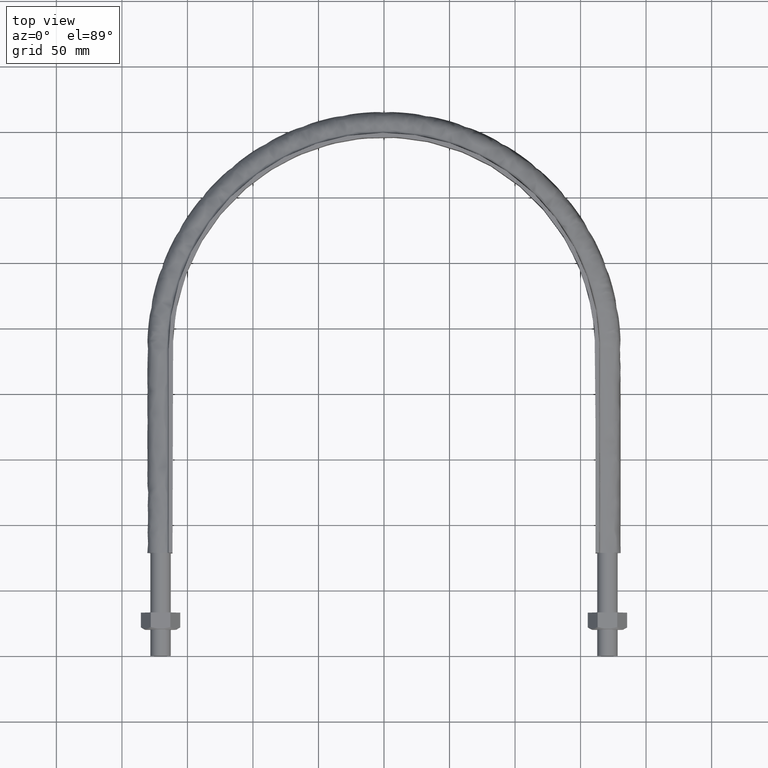
[diagram: clean part render]
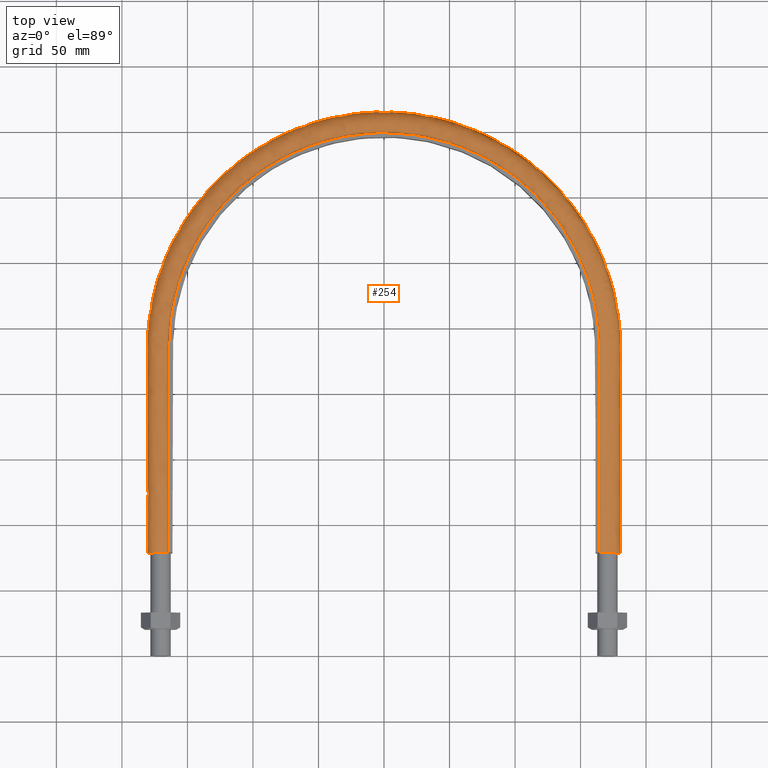
[diagram: same view with one face highlighted and labeled with its STEP entity id]
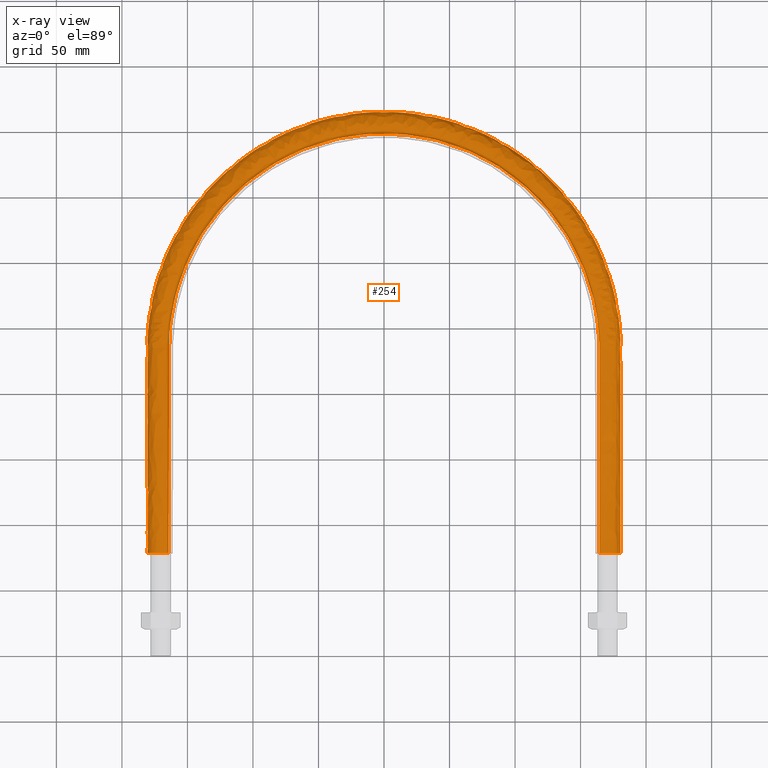
[diagram: x-ray of the same camera — body ghosted, the highlighted face saturated]
A machine part, top view. The second image highlights one B-rep face of the part: STEP entity #254.
The next image is the same camera in x-ray: the body ghosted, the highlighted face saturated — about 0% of this face is hidden behind the body in this view.
In plain terms, the highlighted face is a freeform B-spline surface patch.
Its self-contained STEP definition (entity closure, byte-faithful):
#254 = ADVANCED_FACE( '', ( #349 ), #350, .F. );
#349 = FACE_OUTER_BOUND( '', #648, .T. );
#350 = B_SPLINE_SURFACE_WITH_KNOTS( '', 3, 3, ( ( #649, #650, #651, #652, #653, #654, #655, #656, #657, #658, #659, #660, #661, #662, #663, #664, #665, #666 ), ( #667, #668, #669, #670, #671, #672, #673, #674, #675, #676, #677, #678, #679, #680, #681, #682, #683, #684 ), ( #685, #686, #687, #688, #689, #690, #691, #692, #693, #694, #695, #696, #697, #698, #699, #700, #701, #702 ), ( #703, #704, #705, #706, #707, #708, #709, #710, #711, #712, #713, #714, #715, #716, #717, #718, #719, #720 ), ( #721, #722, #723, #724, #725, #726, #727, #728, #729, #730, #731, #732, #733, #734, #735, #736, #737, #738 ), ( #739, #740, #741, #742, #743, #744, #745, #746, #747, #748, #749, #750, #751, #752, #753, #754, #755, #756 ), ( #757, #758, #759, #760, #761, #762, #763, #764, #765, #766, #767, #768, #769, #770, #771, #772, #773, #774 ), ( #775, #776, #777, #778, #779, #780, #781, #782, #783, #784, #785, #786, #787, #788, #789, #790, #791, #792 ), ( #793, #794, #795, #796, #797, #798, #799, #800, #801, #802, #803, #804, #805, #806, #807, #808, #809, #810 ), ( #811, #812, #813, #814, #815, #816, #817, #818, #819, #820, #821, #822, #823, #824, #825, #826, #827, #828 ), ( #829, #830, #831, #832, #833, #834, #835, #836, #837, #838, #839, #840, #841, #842, #843, #844, #845, #846 ), ( #847, #848, #849, #850, #851, #852, #853, #854, #855, #856, #857, #858, #859, #860, #861, #862, #863, #864 ), ( #865, #866, #867, #868, #869, #870, #871, #872, #873, #874, #875, #876, #877, #878, #879, #880, #881, #882 ), ( #883, #884, #885, #886, #887, #888, #889, #890, #891, #892, #893, #894, #895, #896, #897, #898, #899, #900 ), ( #901, #902, #903, #904, #905, #906, #907, #908, #909, #910, #911, #912, #913, #914, #915, #916, #917, #918 ), ( #919, #920, #921, #922, #923, #924, #925, #926, #927, #928, #929, #930, #931, #932, #933, #934, #935, #936 ), ( #937, #938, #939, #940, #941, #942, #943, #944, #945, #946, #947, #948, #949, #950, #951, #952, #953, #954 ), ( #955, #956, #957, #958, #959, #960, #961, #962, #963, #964, #965, #966, #967, #968, #969, #970, #971, #972 ), ( #973, #974, #975, #976, #977, #978, #979, #980, #981, #982, #983, #984, #985, #986, #987, #988, #989, #990 ), ( #991, #992, #993, #994, #995, #996, #997, #998, #999, #1000, #1001, #1002, #1003, #1004, #1005, #1006, #1007, #1008 ), ( #1009, #1010, #1011, #1012, #1013, #1014, #1015, #1016, #1017, #1018, #1019, #1020, #1021, #1022, #1023, #1024, #1025, #1026 ), ( #1027, #1028, #1029, #1030, #1031, #1032, #1033, #1034, #1035, #1036, #1037, #1038, #1039, #1040, #1041, #1042, #1043, #1044 ), ( #1045, #1046, #1047, #1048, #1049, #1050, #1051, #1052, #1053, #1054, #1055, #1056, #1057, #1058, #1059, #1060, #1061, #1062 ), ( #1063, #1064, #1065, #1066, #1067, #1068, #1069, #1070, #1071, #1072, #1073, #1074, #1075, #1076, #1077, #1078, #1079, #1080 ), ( #1081, #1082, #1083, #1084, #1085, #1086, #1087, #1088, #1089, #1090, #1091, #1092, #1093, #1094, #1095, #1096, #1097, #1098 ), ( #1099, #1100, #1101, #1102, #1103, #1104, #1105, #1106, #1107, #1108, #1109, #1110, #1111, #1112, #1113, #1114, #1115, #1116 ), ( #1117, #1118, #1119, #1120, #1121, #1122, #1123, #1124, #1125, #1126, #1127, #1128, #1129, #1130, #1131, #1132, #1133, #1134 ), ( #1135, #1136, #1137, #1138, #1139, #1140, #1141, #1142, #1143, #1144, #1145, #1146, #1147, #1148, #1149, #1150, #1151, #1152 ), ( #1153, #1154, #1155, #1156, #1157, #1158, #1159, #1160, #1161, #1162, #1163, #1164, #1165, #1166, #1167, #1168, #1169, #1170 ), ( #1171, #1172, #1173, #1174, #1175, #1176, #1177, #1178, #1179, #1180, #1181, #1182, #1183, #1184, #1185, #1186, #1187, #1188 ), ( #1189, #1190, #1191, #1192, #1193, #1194, #1195, #1196, #1197, #1198, #1199, #1200, #1201, #1202, #1203, #1204, #1205, #1206 ), ( #1207, #1208, #1209, #1210, #1211, #1212, #1213, #1214, #1215, #1216, #1217, #1218, #1219, #1220, #1221, #1222, #1223, #1224 ) ), .UNSPECIFIED., .F., .F., .F., ( 4, 3, 1, 1, 1, 3, 3, 1, 1, 1, 1, 3, 3, 1, 1, 1, 3, 4 ), ( 4, 3, 1, 1, 1, 1, 1, 1, 1, 1, 3, 4 ), ( 0.100000000000000, 0.150000000000000, 0.200000000000000, 0.250000000000000, 0.300000000000000, 0.350000000000000, 0.400000000000000, 0.450000000000000, 0.500000000000000, 0.550000000000000, 0.600000000000000, 0.650000000000000, 0.700000000000000, 0.750000000000000, 0.800000000000000, 0.850000000000000, 0.900000000000000, 0.950000000000000 ), ( 0.000000000000000, 1.00000000000000, 2.00000000000000, 3.00000000000000, 4.00000000000000, 5.00000000000000, 6.00000000000000, 7.00000000000000, 8.00000000000000, 9.00000000000000, 10.0000000000000, 11.0000000000000 ), .UNSPECIFIED. );
#648 = EDGE_LOOP( '', ( #1876, #1877, #1878, #1879 ) );
#649 = CARTESIAN_POINT( '', ( 164.400000000000, 78.5100000000000, -20.0000000000000 ) );
#650 = CARTESIAN_POINT( '', ( 164.400000000000, 130.543333333333, -20.0000000000000 ) );
#651 = CARTESIAN_POINT( '', ( 164.400000000000, 182.576666666667, -20.0000000000000 ) );
#652 = CARTESIAN_POINT( '', ( 164.400000000000, 234.610000000000, -20.0000000000000 ) );
#653 = CARTESIAN_POINT( '', ( 164.400000000000, 253.729852554832, -20.0000000000000 ) );
#654 = CARTESIAN_POINT( '', ( 157.654714406062, 291.995036543922, -20.0000000000000 ) );
#655 = CARTESIAN_POINT( '', ( 128.521300722004, 342.451262640467, -20.0000000000000 ) );
#656 = CARTESIAN_POINT( '', ( 83.8863213984847, 379.905611089014, -20.0000000000000 ) );
#657 = CARTESIAN_POINT( '', ( 29.1334136840586, 399.833751296446, -20.0000000000000 ) );
#658 = CARTESIAN_POINT( '', ( -29.1334136840584, 399.833751296446, -20.0000000000000 ) );
#659 = CARTESIAN_POINT( '', ( -83.8863213984845, 379.905611089015, -20.0000000000000 ) );
#660 = CARTESIAN_POINT( '', ( -128.521300722003, 342.451262640467, -20.0000000000001 ) );
#661 = CARTESIAN_POINT( '', ( -157.654714406062, 291.995036543922, -20.0000000000000 ) );
#662 = CARTESIAN_POINT( '', ( -164.400000000000, 253.729852554832, -20.0000000000000 ) );
#663 = CARTESIAN_POINT( '', ( -164.400000000000, 234.610000000000, -20.0000000000000 ) );
#664 = CARTESIAN_POINT( '', ( -164.400000000000, 182.576666666667, -20.0000000000000 ) );
#665 = CARTESIAN_POINT( '', ( -164.400000000000, 130.543333333333, -20.0000000000000 ) );
#666 = CARTESIAN_POINT( '', ( -164.400000000000, 78.5100000000001, -20.0000000000000 ) );
#667 = CARTESIAN_POINT( '', ( 164.400000000000, 78.5100000000000, -17.3666666666667 ) );
#668 = CARTESIAN_POINT( '', ( 164.400000000000, 130.543333333333, -17.3666666666667 ) );
#669 = CARTESIAN_POINT( '', ( 164.400000000000, 182.576666666667, -17.3666666666667 ) );
#670 = CARTESIAN_POINT( '', ( 164.400000000000, 234.610000000000, -17.3666666666667 ) );
#671 = CARTESIAN_POINT( '', ( 164.400000000000, 253.729852554832, -17.3666666666667 ) );
#672 = CARTESIAN_POINT( '', ( 157.654714406062, 291.995036543922, -17.3666666666667 ) );
#673 = CARTESIAN_POINT( '', ( 128.521300722004, 342.451262640467, -17.3666666666667 ) );
#674 = CARTESIAN_POINT( '', ( 83.8863213984847, 379.905611089014, -17.3666666666667 ) );
#675 = CARTESIAN_POINT( '', ( 29.1334136840586, 399.833751296446, -17.3666666666667 ) );
#676 = CARTESIAN_POINT( '', ( -29.1334136840584, 399.833751296446, -17.3666666666667 ) );
#677 = CARTESIAN_POINT( '', ( -83.8863213984845, 379.905611089015, -17.3666666666667 ) );
#678 = CARTESIAN_POINT( '', ( -128.521300722003, 342.451262640467, -17.3666666666667 ) );
#679 = CARTESIAN_POINT( '', ( -157.654714406062, 291.995036543922, -17.3666666666667 ) );
#680 = CARTESIAN_POINT( '', ( -164.400000000000, 253.729852554832, -17.3666666666667 ) );
#681 = CARTESIAN_POINT( '', ( -164.400000000000, 234.610000000000, -17.3666666666667 ) );
#682 = CARTESIAN_POINT( '', ( -164.400000000000, 182.576666666667, -17.3666666666667 ) );
#683 = CARTESIAN_POINT( '', ( -164.400000000000, 130.543333333333, -17.3666666666667 ) );
#684 = CARTESIAN_POINT( '', ( -164.400000000000, 78.5100000000001, -17.3666666666667 ) );
#685 = CARTESIAN_POINT( '', ( 164.400000000000, 78.5100000000000, -14.7333333333333 ) );
#686 = CARTESIAN_POINT( '', ( 164.400000000000, 130.543333333333, -14.7333333333333 ) );
#687 = CARTESIAN_POINT( '', ( 164.400000000000, 182.576666666667, -14.7333333333333 ) );
#688 = CARTESIAN_POINT( '', ( 164.400000000000, 234.610000000000, -14.7333333333333 ) );
#689 = CARTESIAN_POINT( '', ( 164.400000000000, 253.729852554832, -14.7333333333333 ) );
#690 = CARTESIAN_POINT( '', ( 157.654714406062, 291.995036543922, -14.7333333333333 ) );
#691 = CARTESIAN_POINT( '', ( 128.521300722004, 342.451262640467, -14.7333333333333 ) );
#692 = CARTESIAN_POINT( '', ( 83.8863213984847, 379.905611089014, -14.7333333333333 ) );
#693 = CARTESIAN_POINT( '', ( 29.1334136840586, 399.833751296446, -14.7333333333333 ) );
#694 = CARTESIAN_POINT( '', ( -29.1334136840584, 399.833751296446, -14.7333333333333 ) );
#695 = CARTESIAN_POINT( '', ( -83.8863213984845, 379.905611089015, -14.7333333333333 ) );
#696 = CARTESIAN_POINT( '', ( -128.521300722003, 342.451262640467, -14.7333333333334 ) );
#697 = CARTESIAN_POINT( '', ( -157.654714406062, 291.995036543922, -14.7333333333333 ) );
#698 = CARTESIAN_POINT( '', ( -164.400000000000, 253.729852554832, -14.7333333333333 ) );
#699 = CARTESIAN_POINT( '', ( -164.400000000000, 234.610000000000, -14.7333333333333 ) );
#700 = CARTESIAN_POINT( '', ( -164.400000000000, 182.576666666667, -14.7333333333333 ) );
#701 = CARTESIAN_POINT( '', ( -164.400000000000, 130.543333333333, -14.7333333333333 ) );
#702 = CARTESIAN_POINT( '', ( -164.400000000000, 78.5100000000001, -14.7333333333333 ) );
#703 = CARTESIAN_POINT( '', ( 164.400000000000, 78.5100000000000, -12.1000000000000 ) );
#704 = CARTESIAN_POINT( '', ( 164.400000000000, 130.543333333333, -12.1000000000000 ) );
#705 = CARTESIAN_POINT( '', ( 164.400000000000, 182.576666666667, -12.1000000000000 ) );
#706 = CARTESIAN_POINT( '', ( 164.400000000000, 234.610000000000, -12.1000000000000 ) );
#707 = CARTESIAN_POINT( '', ( 164.400000000000, 253.729852554832, -12.1000000000000 ) );
#708 = CARTESIAN_POINT( '', ( 157.654714406062, 291.995036543922, -12.1000000000000 ) );
#709 = CARTESIAN_POINT( '', ( 128.521300722003, 342.451262640467, -12.1000000000000 ) );
#710 = CARTESIAN_POINT( '', ( 83.8863213984847, 379.905611089014, -12.1000000000000 ) );
#711 = CARTESIAN_POINT( '', ( 29.1334136840586, 399.833751296446, -12.1000000000000 ) );
#712 = CARTESIAN_POINT( '', ( -29.1334136840584, 399.833751296446, -12.1000000000000 ) );
#713 = CARTESIAN_POINT( '', ( -83.8863213984845, 379.905611089015, -12.1000000000000 ) );
#714 = CARTESIAN_POINT( '', ( -128.521300722003, 342.451262640467, -12.1000000000000 ) );
#715 = CARTESIAN_POINT( '', ( -157.654714406062, 291.995036543922, -12.1000000000000 ) );
#716 = CARTESIAN_POINT( '', ( -164.400000000000, 253.729852554832, -12.1000000000000 ) );
#717 = CARTESIAN_POINT( '', ( -164.400000000000, 234.610000000000, -12.1000000000000 ) );
#718 = CARTESIAN_POINT( '', ( -164.400000000000, 182.576666666667, -12.1000000000000 ) );
#719 = CARTESIAN_POINT( '', ( -164.400000000000, 130.543333333333, -12.1000000000000 ) );
#720 = CARTESIAN_POINT( '', ( -164.400000000000, 78.5100000000001, -12.1000000000000 ) );
#721 = CARTESIAN_POINT( '', ( 164.400000000000, 78.5100000000000, -11.8382358417233 ) );
#722 = CARTESIAN_POINT( '', ( 164.400000000000, 130.543333333333, -11.8382358417233 ) );
#723 = CARTESIAN_POINT( '', ( 164.400000000000, 182.576666666667, -11.8382358417233 ) );
#724 = CARTESIAN_POINT( '', ( 164.400000000000, 234.610000000000, -11.8382358417233 ) );
#725 = CARTESIAN_POINT( '', ( 164.400000000000, 253.729852554832, -11.8382358417233 ) );
#726 = CARTESIAN_POINT( '', ( 157.654714406062, 291.995036543922, -11.8382358417233 ) );
#727 = CARTESIAN_POINT( '', ( 128.521300722003, 342.451262640467, -11.8382358417233 ) );
#728 = CARTESIAN_POINT( '', ( 83.8863213984847, 379.905611089014, -11.8382358417233 ) );
#729 = CARTESIAN_POINT( '', ( 29.1334136840586, 399.833751296446, -11.8382358417233 ) );
#730 = CARTESIAN_POINT( '', ( -29.1334136840584, 399.833751296446, -11.8382358417233 ) );
#731 = CARTESIAN_POINT( '', ( -83.8863213984845, 379.905611089015, -11.8382358417233 ) );
#732 = CARTESIAN_POINT( '', ( -128.521300722003, 342.451262640467, -11.8382358417233 ) );
#733 = CARTESIAN_POINT( '', ( -157.654714406062, 291.995036543922, -11.8382358417233 ) );
#734 = CARTESIAN_POINT( '', ( -164.400000000000, 253.729852554832, -11.8382358417233 ) );
#735 = CARTESIAN_POINT( '', ( -164.400000000000, 234.610000000000, -11.8382358417233 ) );
#736 = CARTESIAN_POINT( '', ( -164.400000000000, 182.576666666667, -11.8382358417233 ) );
#737 = CARTESIAN_POINT( '', ( -164.400000000000, 130.543333333333, -11.8382358417233 ) );
#738 = CARTESIAN_POINT( '', ( -164.400000000000, 78.5100000000001, -11.8382358417233 ) );
#739 = CARTESIAN_POINT( '', ( 164.504136256836, 78.5100000000000, -11.3147075251700 ) );
#740 = CARTESIAN_POINT( '', ( 164.504136256836, 130.543333333333, -11.3147075251700 ) );
#741 = CARTESIAN_POINT( '', ( 164.504136256836, 182.576666666667, -11.3147075251700 ) );
#742 = CARTESIAN_POINT( '', ( 164.504136256836, 234.610000000000, -11.3147075251700 ) );
#743 = CARTESIAN_POINT( '', ( 164.504136256836, 253.742093909332, -11.3147075251700 ) );
#744 = CARTESIAN_POINT( '', ( 157.754577981675, 292.031325644286, -11.3147075251700 ) );
#745 = CARTESIAN_POINT( '', ( 128.602710254734, 342.519588942373, -11.3147075251700 ) );
#746 = CARTESIAN_POINT( '', ( 83.9394576972084, 379.997641754704, -11.3147075251700 ) );
#747 = CARTESIAN_POINT( '', ( 29.1518677269413, 399.938410195030, -11.3147075251700 ) );
#748 = CARTESIAN_POINT( '', ( -29.1518677269410, 399.938410195030, -11.3147075251700 ) );
#749 = CARTESIAN_POINT( '', ( -83.9394576972082, 379.997641754704, -11.3147075251700 ) );
#750 = CARTESIAN_POINT( '', ( -128.602710254734, 342.519588942373, -11.3147075251700 ) );
#751 = CARTESIAN_POINT( '', ( -157.754577981675, 292.031325644285, -11.3147075251700 ) );
#752 = CARTESIAN_POINT( '', ( -164.504136256836, 253.742093909332, -11.3147075251700 ) );
#753 = CARTESIAN_POINT( '', ( -164.504136256836, 234.610000000000, -11.3147075251700 ) );
#754 = CARTESIAN_POINT( '', ( -164.504136256836, 182.576666666667, -11.3147075251700 ) );
#755 = CARTESIAN_POINT( '', ( -164.504136256836, 130.543333333333, -11.3147075251700 ) );
#756 = CARTESIAN_POINT( '', ( -164.504136256836, 78.5100000000001, -11.3147075251700 ) );
#757 = CARTESIAN_POINT( '', ( 164.948968710939, 78.5100000000000, -10.6489687109389 ) );
#758 = CARTESIAN_POINT( '', ( 164.948968710939, 130.543333333333, -10.6489687109389 ) );
#759 = CARTESIAN_POINT( '', ( 164.948968710939, 182.576666666667, -10.6489687109389 ) );
#760 = CARTESIAN_POINT( '', ( 164.948968710939, 234.610000000000, -10.6489687109389 ) );
#761 = CARTESIAN_POINT( '', ( 164.948968710939, 253.794384551701, -10.6489687109389 ) );
#762 = CARTESIAN_POINT( '', ( 158.181159085751, 292.186339566070, -10.6489687109389 ) );
#763 = CARTESIAN_POINT( '', ( 128.950462356952, 342.811454210824, -10.6489687109389 ) );
#764 = CARTESIAN_POINT( '', ( 84.1664367617665, 380.390763498421, -10.6489687109389 ) );
#765 = CARTESIAN_POINT( '', ( 29.2306967287994, 400.385475185797, -10.6489687109389 ) );
#766 = CARTESIAN_POINT( '', ( -29.2306967287992, 400.385475185797, -10.6489687109389 ) );
#767 = CARTESIAN_POINT( '', ( -84.1664367617663, 380.390763498421, -10.6489687109389 ) );
#768 = CARTESIAN_POINT( '', ( -128.950462356952, 342.811454210824, -10.6489687109389 ) );
#769 = CARTESIAN_POINT( '', ( -158.181159085751, 292.186339566070, -10.6489687109389 ) );
#770 = CARTESIAN_POINT( '', ( -164.948968710939, 253.794384551701, -10.6489687109389 ) );
#771 = CARTESIAN_POINT( '', ( -164.948968710939, 234.610000000000, -10.6489687109389 ) );
#772 = CARTESIAN_POINT( '', ( -164.948968710939, 182.576666666667, -10.6489687109389 ) );
#773 = CARTESIAN_POINT( '', ( -164.948968710939, 130.543333333333, -10.6489687109389 ) );
#774 = CARTESIAN_POINT( '', ( -164.948968710939, 78.5100000000001, -10.6489687109389 ) );
#775 = CARTESIAN_POINT( '', ( 165.614707525170, 78.5100000000000, -10.2041362568359 ) );
#776 = CARTESIAN_POINT( '', ( 165.614707525170, 130.543333333333, -10.2041362568359 ) );
#777 = CARTESIAN_POINT( '', ( 165.614707525170, 182.576666666667, -10.2041362568359 ) );
#778 = CARTESIAN_POINT( '', ( 165.614707525170, 234.610000000000, -10.2041362568359 ) );
#779 = CARTESIAN_POINT( '', ( 165.614707525170, 253.872643028403, -10.2041362568359 ) );
#780 = CARTESIAN_POINT( '', ( 158.819582824356, 292.418334294706, -10.2041362568359 ) );
#781 = CARTESIAN_POINT( '', ( 129.470910157111, 343.248261453508, -10.2041362568359 ) );
#782 = CARTESIAN_POINT( '', ( 84.5061349377886, 380.979111765497, -10.2041362568359 ) );
#783 = CARTESIAN_POINT( '', ( 29.3486726672454, 401.054555227265, -10.2041362568359 ) );
#784 = CARTESIAN_POINT( '', ( -29.3486726672452, 401.054555227265, -10.2041362568359 ) );
#785 = CARTESIAN_POINT( '', ( -84.5061349377885, 380.979111765497, -10.2041362568359 ) );
#786 = CARTESIAN_POINT( '', ( -129.470910157111, 343.248261453508, -10.2041362568359 ) );
#787 = CARTESIAN_POINT( '', ( -158.819582824356, 292.418334294706, -10.2041362568359 ) );
#788 = CARTESIAN_POINT( '', ( -165.614707525170, 253.872643028404, -10.2041362568359 ) );
#789 = CARTESIAN_POINT( '', ( -165.614707525170, 234.610000000000, -10.2041362568359 ) );
#790 = CARTESIAN_POINT( '', ( -165.614707525170, 182.576666666667, -10.2041362568359 ) );
#791 = CARTESIAN_POINT( '', ( -165.614707525170, 130.543333333333, -10.2041362568359 ) );
#792 = CARTESIAN_POINT( '', ( -165.614707525170, 78.5100000000001, -10.2041362568359 ) );
#793 = CARTESIAN_POINT( '', ( 166.138235841723, 78.5100000000000, -10.1000000000000 ) );
#794 = CARTESIAN_POINT( '', ( 166.138235841723, 130.543333333333, -10.1000000000000 ) );
#795 = CARTESIAN_POINT( '', ( 166.138235841723, 182.576666666667, -10.1000000000000 ) );
#796 = CARTESIAN_POINT( '', ( 166.138235841723, 234.610000000000, -10.1000000000000 ) );
#797 = CARTESIAN_POINT( '', ( 166.138235841723, 253.934184473319, -10.1000000000000 ) );
#798 = CARTESIAN_POINT( '', ( 159.321630921861, 292.600771922100, -10.1000000000000 ) );
#799 = CARTESIAN_POINT( '', ( 129.880183516042, 343.591760969434, -10.1000000000000 ) );
#800 = CARTESIAN_POINT( '', ( 84.7732691508276, 381.441781165606, -10.1000000000000 ) );
#801 = CARTESIAN_POINT( '', ( 29.4414474058188, 401.580711041319, -10.1000000000000 ) );
#802 = CARTESIAN_POINT( '', ( -29.4414474058186, 401.580711041319, -10.1000000000000 ) );
#803 = CARTESIAN_POINT( '', ( -84.7732691508274, 381.441781165606, -10.1000000000000 ) );
#804 = CARTESIAN_POINT( '', ( -129.880183516042, 343.591760969434, -10.1000000000000 ) );
#805 = CARTESIAN_POINT( '', ( -159.321630921860, 292.600771922100, -10.1000000000000 ) );
#806 = CARTESIAN_POINT( '', ( -166.138235841723, 253.934184473319, -10.1000000000000 ) );
#807 = CARTESIAN_POINT( '', ( -166.138235841723, 234.610000000000, -10.1000000000000 ) );
#808 = CARTESIAN_POINT( '', ( -166.138235841723, 182.576666666667, -10.1000000000000 ) );
#809 = CARTESIAN_POINT( '', ( -166.138235841723, 130.543333333333, -10.1000000000000 ) );
#810 = CARTESIAN_POINT( '', ( -166.138235841723, 78.5100000000001, -10.1000000000000 ) );
#811 = CARTESIAN_POINT( '', ( 166.400000000000, 78.5100000000000, -10.1000000000000 ) );
#812 = CARTESIAN_POINT( '', ( 166.400000000000, 130.543333333333, -10.1000000000000 ) );
#813 = CARTESIAN_POINT( '', ( 166.400000000000, 182.576666666667, -10.1000000000000 ) );
#814 = CARTESIAN_POINT( '', ( 166.400000000000, 234.610000000000, -10.1000000000000 ) );
#815 = CARTESIAN_POINT( '', ( 166.400000000000, 253.964955195777, -10.1000000000000 ) );
#816 = CARTESIAN_POINT( '', ( 159.572654970613, 292.691990735796, -10.1000000000000 ) );
#817 = CARTESIAN_POINT( '', ( 130.084820195507, 343.763510727396, -10.1000000000000 ) );
#818 = CARTESIAN_POINT( '', ( 84.9068362573470, 381.673115865660, -10.1000000000000 ) );
#819 = CARTESIAN_POINT( '', ( 29.4878347751055, 401.843788948346, -10.1000000000000 ) );
#820 = CARTESIAN_POINT( '', ( -29.4878347751053, 401.843788948346, -10.1000000000000 ) );
#821 = CARTESIAN_POINT( '', ( -84.9068362573468, 381.673115865661, -10.1000000000000 ) );
#822 = CARTESIAN_POINT( '', ( -130.084820195507, 343.763510727396, -10.1000000000000 ) );
#823 = CARTESIAN_POINT( '', ( -159.572654970613, 292.691990735796, -10.1000000000000 ) );
#824 = CARTESIAN_POINT( '', ( -166.400000000000, 253.964955195777, -10.1000000000000 ) );
#825 = CARTESIAN_POINT( '', ( -166.400000000000, 234.610000000000, -10.1000000000000 ) );
#826 = CARTESIAN_POINT( '', ( -166.400000000000, 182.576666666667, -10.1000000000000 ) );
#827 = CARTESIAN_POINT( '', ( -166.400000000000, 130.543333333333, -10.1000000000000 ) );
#828 = CARTESIAN_POINT( '', ( -166.400000000000, 78.5100000000001, -10.1000000000000 ) );
#829 = CARTESIAN_POINT( '', ( 167.766666666667, 78.5100000000000, -10.1000000000000 ) );
#830 = CARTESIAN_POINT( '', ( 167.766666666667, 130.543333333333, -10.1000000000000 ) );
#831 = CARTESIAN_POINT( '', ( 167.766666666667, 182.576666666667, -10.1000000000000 ) );
#832 = CARTESIAN_POINT( '', ( 167.766666666667, 234.610000000000, -10.1000000000000 ) );
#833 = CARTESIAN_POINT( '', ( 167.766666666667, 254.125608667089, -10.1000000000000 ) );
#834 = CARTESIAN_POINT( '', ( 160.883247689722, 293.168242766911, -10.1000000000000 ) );
#835 = CARTESIAN_POINT( '', ( 131.153225169068, 344.660213586798, -10.1000000000000 ) );
#836 = CARTESIAN_POINT( '', ( 85.6041880775696, 382.880910796368, -10.1000000000000 ) );
#837 = CARTESIAN_POINT( '', ( 29.7300225206543, 403.217314677144, -10.1000000000000 ) );
#838 = CARTESIAN_POINT( '', ( -29.7300225206541, 403.217314677144, -10.1000000000000 ) );
#839 = CARTESIAN_POINT( '', ( -85.6041880775694, 382.880910796369, -10.1000000000000 ) );
#840 = CARTESIAN_POINT( '', ( -131.153225169068, 344.660213586798, -10.1000000000000 ) );
#841 = CARTESIAN_POINT( '', ( -160.883247689722, 293.168242766911, -10.1000000000000 ) );
#842 = CARTESIAN_POINT( '', ( -167.766666666667, 254.125608667089, -10.1000000000000 ) );
#843 = CARTESIAN_POINT( '', ( -167.766666666667, 234.610000000000, -10.1000000000000 ) );
#844 = CARTESIAN_POINT( '', ( -167.766666666667, 182.576666666667, -10.1000000000000 ) );
#845 = CARTESIAN_POINT( '', ( -167.766666666667, 130.543333333333, -10.1000000000000 ) );
#846 = CARTESIAN_POINT( '', ( -167.766666666667, 78.5100000000001, -10.1000000000000 ) );
#847 = CARTESIAN_POINT( '', ( 169.133333333333, 78.5100000000000, -10.1000000000000 ) );
#848 = CARTESIAN_POINT( '', ( 169.133333333333, 130.543333333333, -10.1000000000000 ) );
#849 = CARTESIAN_POINT( '', ( 169.133333333333, 182.576666666667, -10.1000000000000 ) );
#850 = CARTESIAN_POINT( '', ( 169.133333333333, 234.610000000000, -10.1000000000000 ) );
#851 = CARTESIAN_POINT( '', ( 169.133333333333, 254.286262138401, -10.1000000000000 ) );
#852 = CARTESIAN_POINT( '', ( 162.193840408832, 293.644494798025, -10.1000000000000 ) );
#853 = CARTESIAN_POINT( '', ( 132.221630142629, 345.556916446200, -10.1000000000000 ) );
#854 = CARTESIAN_POINT( '', ( 86.3015398977922, 384.088705727076, -10.1000000000000 ) );
#855 = CARTESIAN_POINT( '', ( 29.9722102662030, 404.590840405943, -10.1000000000000 ) );
#856 = CARTESIAN_POINT( '', ( -29.9722102662028, 404.590840405943, -10.1000000000000 ) );
#857 = CARTESIAN_POINT( '', ( -86.3015398977920, 384.088705727077, -10.1000000000000 ) );
#858 = CARTESIAN_POINT( '', ( -132.221630142629, 345.556916446200, -10.1000000000000 ) );
#859 = CARTESIAN_POINT( '', ( -162.193840408832, 293.644494798025, -10.1000000000000 ) );
#860 = CARTESIAN_POINT( '', ( -169.133333333333, 254.286262138401, -10.1000000000000 ) );
#861 = CARTESIAN_POINT( '', ( -169.133333333333, 234.610000000000, -10.1000000000000 ) );
#862 = CARTESIAN_POINT( '', ( -169.133333333333, 182.576666666667, -10.1000000000000 ) );
#863 = CARTESIAN_POINT( '', ( -169.133333333333, 130.543333333333, -10.1000000000000 ) );
#864 = CARTESIAN_POINT( '', ( -169.133333333333, 78.5100000000001, -10.1000000000000 ) );
#865 = CARTESIAN_POINT( '', ( 170.500000000000, 78.5100000000000, -10.1000000000000 ) );
#866 = CARTESIAN_POINT( '', ( 170.500000000000, 130.543333333333, -10.1000000000000 ) );
#867 = CARTESIAN_POINT( '', ( 170.500000000000, 182.576666666667, -10.1000000000000 ) );
#868 = CARTESIAN_POINT( '', ( 170.500000000000, 234.610000000000, -10.1000000000000 ) );
#869 = CARTESIAN_POINT( '', ( 170.500000000000, 254.446915609713, -10.1000000000000 ) );
#870 = CARTESIAN_POINT( '', ( 163.504433127941, 294.120746829140, -10.1000000000000 ) );
#871 = CARTESIAN_POINT( '', ( 133.290035116190, 346.453619305602, -10.1000000000000 ) );
#872 = CARTESIAN_POINT( '', ( 86.9988917180148, 385.296500657785, -10.1000000000000 ) );
#873 = CARTESIAN_POINT( '', ( 30.2143980117518, 405.964366134741, -10.1000000000000 ) );
#874 = CARTESIAN_POINT( '', ( -30.2143980117516, 405.964366134741, -10.1000000000000 ) );
#875 = CARTESIAN_POINT( '', ( -86.9988917180146, 385.296500657785, -10.1000000000000 ) );
#876 = CARTESIAN_POINT( '', ( -133.290035116190, 346.453619305602, -10.1000000000000 ) );
#877 = CARTESIAN_POINT( '', ( -163.504433127941, 294.120746829139, -10.1000000000000 ) );
#878 = CARTESIAN_POINT( '', ( -170.500000000000, 254.446915609713, -10.1000000000000 ) );
#879 = CARTESIAN_POINT( '', ( -170.500000000000, 234.610000000000, -10.1000000000000 ) );
#880 = CARTESIAN_POINT( '', ( -170.500000000000, 182.576666666667, -10.1000000000000 ) );
#881 = CARTESIAN_POINT( '', ( -170.500000000000, 130.543333333333, -10.1000000000000 ) );
#882 = CARTESIAN_POINT( '', ( -170.500000000000, 78.5100000000001, -10.1000000000000 ) );
#883 = CARTESIAN_POINT( '', ( 172.613419413283, 78.5100000000000, -10.1000000000000 ) );
#884 = CARTESIAN_POINT( '', ( 172.613419413283, 130.543333333333, -10.1000000000000 ) );
#885 = CARTESIAN_POINT( '', ( 172.613419413283, 182.576666666667, -10.1000000000000 ) );
#886 = CARTESIAN_POINT( '', ( 172.613419413283, 234.610000000000, -10.1000000000000 ) );
#887 = CARTESIAN_POINT( '', ( 172.613419413283, 254.695350852456, -10.1000000000000 ) );
#888 = CARTESIAN_POINT( '', ( 165.531139539264, 294.857225088778, -10.1000000000000 ) );
#889 = CARTESIAN_POINT( '', ( 134.942221320364, 347.840284596582, -10.1000000000000 ) );
#890 = CARTESIAN_POINT( '', ( 88.0772796751465, 387.164240111802, -10.1000000000000 ) );
#891 = CARTESIAN_POINT( '', ( 30.5889182188996, 408.088392432219, -10.1000000000000 ) );
#892 = CARTESIAN_POINT( '', ( -30.5889182188993, 408.088392432219, -10.1000000000000 ) );
#893 = CARTESIAN_POINT( '', ( -88.0772796751464, 387.164240111802, -10.1000000000000 ) );
#894 = CARTESIAN_POINT( '', ( -134.942221320364, 347.840284596582, -10.1000000000000 ) );
#895 = CARTESIAN_POINT( '', ( -165.531139539264, 294.857225088778, -10.1000000000000 ) );
#896 = CARTESIAN_POINT( '', ( -172.613419413283, 254.695350852456, -10.1000000000000 ) );
#897 = CARTESIAN_POINT( '', ( -172.613419413283, 234.610000000000, -10.1000000000000 ) );
#898 = CARTESIAN_POINT( '', ( -172.613419413283, 182.576666666667, -10.1000000000000 ) );
#899 = CARTESIAN_POINT( '', ( -172.613419413283, 130.543333333333, -10.1000000000000 ) );
#900 = CARTESIAN_POINT( '', ( -172.613419413283, 78.5100000000001, -10.1000000000000 ) );
#901 = CARTESIAN_POINT( '', ( 176.840258239849, 78.5100000000000, -8.72661681244669 ) );
#902 = CARTESIAN_POINT( '', ( 176.840258239849, 130.543333333333, -8.72661681244669 ) );
#903 = CARTESIAN_POINT( '', ( 176.840258239849, 182.576666666667, -8.72661681244669 ) );
#904 = CARTESIAN_POINT( '', ( 176.840258239849, 234.610000000000, -8.72661681244669 ) );
#905 = CARTESIAN_POINT( '', ( 176.840258239849, 255.192221337943, -8.72661681244669 ) );
#906 = CARTESIAN_POINT( '', ( 169.584552361908, 296.330181608055, -8.72661681244669 ) );
#907 = CARTESIAN_POINT( '', ( 138.246593728713, 350.613615178542, -8.72661681244669 ) );
#908 = CARTESIAN_POINT( '', ( 90.2340555894100, 390.899719019836, -8.72661681244669 ) );
#909 = CARTESIAN_POINT( '', ( 31.3379586331951, 412.336445027174, -8.72661681244669 ) );
#910 = CARTESIAN_POINT( '', ( -31.3379586331949, 412.336445027174, -8.72661681244670 ) );
#911 = CARTESIAN_POINT( '', ( -90.2340555894098, 390.899719019836, -8.72661681244669 ) );
#912 = CARTESIAN_POINT( '', ( -138.246593728713, 350.613615178542, -8.72661681244670 ) );
#913 = CARTESIAN_POINT( '', ( -169.584552361908, 296.330181608055, -8.72661681244669 ) );
#914 = CARTESIAN_POINT( '', ( -176.840258239849, 255.192221337943, -8.72661681244669 ) );
#915 = CARTESIAN_POINT( '', ( -176.840258239849, 234.610000000000, -8.72661681244669 ) );
#916 = CARTESIAN_POINT( '', ( -176.840258239849, 182.576666666667, -8.72661681244669 ) );
#917 = CARTESIAN_POINT( '', ( -176.840258239849, 130.543333333333, -8.72661681244669 ) );
#918 = CARTESIAN_POINT( '', ( -176.840258239849, 78.5100000000001, -8.72661681244669 ) );
#919 = CARTESIAN_POINT( '', ( 180.758753329527, 78.5100000000000, -3.33327101555837 ) );
#920 = CARTESIAN_POINT( '', ( 180.758753329527, 130.543333333333, -3.33327101555837 ) );
#921 = CARTESIAN_POINT( '', ( 180.758753329527, 182.576666666667, -3.33327101555837 ) );
#922 = CARTESIAN_POINT( '', ( 180.758753329527, 234.610000000000, -3.33327101555837 ) );
#923 = CARTESIAN_POINT( '', ( 180.758753329528, 255.652845609999, -3.33327101555837 ) );
#924 = CARTESIAN_POINT( '', ( 173.342272704151, 297.695687397351, -3.33327101555837 ) );
#925 = CARTESIAN_POINT( '', ( 141.309915418483, 353.184634021078, -3.33327101555837 ) );
#926 = CARTESIAN_POINT( '', ( 92.2334968211080, 394.362698413970, -3.33327101555837 ) );
#927 = CARTESIAN_POINT( '', ( 32.0323572856681, 416.274606361694, -3.33327101555837 ) );
#928 = CARTESIAN_POINT( '', ( -32.0323572856679, 416.274606361694, -3.33327101555837 ) );
#929 = CARTESIAN_POINT( '', ( -92.2334968211077, 394.362698413971, -3.33327101555837 ) );
#930 = CARTESIAN_POINT( '', ( -141.309915418483, 353.184634021078, -3.33327101555838 ) );
#931 = CARTESIAN_POINT( '', ( -173.342272704151, 297.695687397351, -3.33327101555837 ) );
#932 = CARTESIAN_POINT( '', ( -180.758753329527, 255.652845609999, -3.33327101555837 ) );
#933 = CARTESIAN_POINT( '', ( -180.758753329527, 234.610000000000, -3.33327101555837 ) );
#934 = CARTESIAN_POINT( '', ( -180.758753329527, 182.576666666667, -3.33327101555837 ) );
#935 = CARTESIAN_POINT( '', ( -180.758753329527, 130.543333333333, -3.33327101555837 ) );
#936 = CARTESIAN_POINT( '', ( -180.758753329527, 78.5100000000001, -3.33327101555837 ) );
#937 = CARTESIAN_POINT( '', ( 180.758753329527, 78.5100000000000, 3.33327101555838 ) );
#938 = CARTESIAN_POINT( '', ( 180.758753329527, 130.543333333333, 3.33327101555838 ) );
#939 = CARTESIAN_POINT( '', ( 180.758753329527, 182.576666666667, 3.33327101555838 ) );
#940 = CARTESIAN_POINT( '', ( 180.758753329527, 234.610000000000, 3.33327101555838 ) );
#941 = CARTESIAN_POINT( '', ( 180.758753329528, 255.652845609999, 3.33327101555838 ) );
#942 = CARTESIAN_POINT( '', ( 173.342272704151, 297.695687397351, 3.33327101555837 ) );
#943 = CARTESIAN_POINT( '', ( 141.309915418483, 353.184634021078, 3.33327101555838 ) );
#944 = CARTESIAN_POINT( '', ( 92.2334968211080, 394.362698413970, 3.33327101555838 ) );
#945 = CARTESIAN_POINT( '', ( 32.0323572856681, 416.274606361694, 3.33327101555837 ) );
#946 = CARTESIAN_POINT( '', ( -32.0323572856679, 416.274606361694, 3.33327101555838 ) );
#947 = CARTESIAN_POINT( '', ( -92.2334968211077, 394.362698413971, 3.33327101555837 ) );
#948 = CARTESIAN_POINT( '', ( -141.309915418483, 353.184634021078, 3.33327101555838 ) );
#949 = CARTESIAN_POINT( '', ( -173.342272704151, 297.695687397351, 3.33327101555837 ) );
#950 = CARTESIAN_POINT( '', ( -180.758753329527, 255.652845609999, 3.33327101555838 ) );
#951 = CARTESIAN_POINT( '', ( -180.758753329527, 234.610000000000, 3.33327101555838 ) );
#952 = CARTESIAN_POINT( '', ( -180.758753329527, 182.576666666667, 3.33327101555838 ) );
#953 = CARTESIAN_POINT( '', ( -180.758753329527, 130.543333333333, 3.33327101555838 ) );
#954 = CARTESIAN_POINT( '', ( -180.758753329527, 78.5100000000001, 3.33327101555838 ) );
#955 = CARTESIAN_POINT( '', ( 176.840258239849, 78.5100000000000, 8.72661681244669 ) );
#956 = CARTESIAN_POINT( '', ( 176.840258239849, 130.543333333333, 8.72661681244669 ) );
#957 = CARTESIAN_POINT( '', ( 176.840258239849, 182.576666666667, 8.72661681244669 ) );
#958 = CARTESIAN_POINT( '', ( 176.840258239849, 234.610000000000, 8.72661681244669 ) );
#959 = CARTESIAN_POINT( '', ( 176.840258239849, 255.192221337943, 8.72661681244669 ) );
#960 = CARTESIAN_POINT( '', ( 169.584552361908, 296.330181608055, 8.72661681244669 ) );
#961 = CARTESIAN_POINT( '', ( 138.246593728713, 350.613615178542, 8.72661681244669 ) );
#962 = CARTESIAN_POINT( '', ( 90.2340555894100, 390.899719019835, 8.72661681244670 ) );
#963 = CARTESIAN_POINT( '', ( 31.3379586331951, 412.336445027174, 8.72661681244669 ) );
#964 = CARTESIAN_POINT( '', ( -31.3379586331949, 412.336445027174, 8.72661681244670 ) );
#965 = CARTESIAN_POINT( '', ( -90.2340555894098, 390.899719019836, 8.72661681244669 ) );
#966 = CARTESIAN_POINT( '', ( -138.246593728713, 350.613615178542, 8.72661681244671 ) );
#967 = CARTESIAN_POINT( '', ( -169.584552361908, 296.330181608055, 8.72661681244669 ) );
#968 = CARTESIAN_POINT( '', ( -176.840258239849, 255.192221337943, 8.72661681244669 ) );
#969 = CARTESIAN_POINT( '', ( -176.840258239849, 234.610000000000, 8.72661681244669 ) );
#970 = CARTESIAN_POINT( '', ( -176.840258239849, 182.576666666667, 8.72661681244669 ) );
#971 = CARTESIAN_POINT( '', ( -176.840258239849, 130.543333333333, 8.72661681244669 ) );
#972 = CARTESIAN_POINT( '', ( -176.840258239849, 78.5100000000001, 8.72661681244669 ) );
#973 = CARTESIAN_POINT( '', ( 172.613419413283, 78.5100000000000, 10.1000000000000 ) );
#974 = CARTESIAN_POINT( '', ( 172.613419413283, 130.543333333333, 10.1000000000000 ) );
#975 = CARTESIAN_POINT( '', ( 172.613419413283, 182.576666666667, 10.1000000000000 ) );
#976 = CARTESIAN_POINT( '', ( 172.613419413283, 234.610000000000, 10.1000000000000 ) );
#977 = CARTESIAN_POINT( '', ( 172.613419413283, 254.695350852456, 10.1000000000000 ) );
#978 = CARTESIAN_POINT( '', ( 165.531139539264, 294.857225088778, 10.1000000000000 ) );
#979 = CARTESIAN_POINT( '', ( 134.942221320364, 347.840284596582, 10.1000000000000 ) );
#980 = CARTESIAN_POINT( '', ( 88.0772796751465, 387.164240111802, 10.1000000000000 ) );
#981 = CARTESIAN_POINT( '', ( 30.5889182188996, 408.088392432219, 10.1000000000000 ) );
#982 = CARTESIAN_POINT( '', ( -30.5889182188993, 408.088392432219, 10.1000000000000 ) );
#983 = CARTESIAN_POINT( '', ( -88.0772796751464, 387.164240111802, 10.1000000000000 ) );
#984 = CARTESIAN_POINT( '', ( -134.942221320364, 347.840284596582, 10.1000000000000 ) );
#985 = CARTESIAN_POINT( '', ( -165.531139539264, 294.857225088778, 10.1000000000000 ) );
#986 = CARTESIAN_POINT( '', ( -172.613419413283, 254.695350852456, 10.1000000000000 ) );
#987 = CARTESIAN_POINT( '', ( -172.613419413283, 234.610000000000, 10.1000000000000 ) );
#988 = CARTESIAN_POINT( '', ( -172.613419413283, 182.576666666667, 10.1000000000000 ) );
#989 = CARTESIAN_POINT( '', ( -172.613419413283, 130.543333333333, 10.1000000000000 ) );
#990 = CARTESIAN_POINT( '', ( -172.613419413283, 78.5100000000001, 10.1000000000000 ) );
#991 = CARTESIAN_POINT( '', ( 170.500000000000, 78.5100000000000, 10.1000000000000 ) );
#992 = CARTESIAN_POINT( '', ( 170.500000000000, 130.543333333333, 10.1000000000000 ) );
#993 = CARTESIAN_POINT( '', ( 170.500000000000, 182.576666666667, 10.1000000000000 ) );
#994 = CARTESIAN_POINT( '', ( 170.500000000000, 234.610000000000, 10.1000000000000 ) );
#995 = CARTESIAN_POINT( '', ( 170.500000000000, 254.446915609713, 10.1000000000000 ) );
#996 = CARTESIAN_POINT( '', ( 163.504433127941, 294.120746829140, 10.1000000000000 ) );
#997 = CARTESIAN_POINT( '', ( 133.290035116190, 346.453619305602, 10.1000000000000 ) );
#998 = CARTESIAN_POINT( '', ( 86.9988917180148, 385.296500657785, 10.1000000000000 ) );
#999 = CARTESIAN_POINT( '', ( 30.2143980117518, 405.964366134741, 10.1000000000000 ) );
#1000 = CARTESIAN_POINT( '', ( -30.2143980117516, 405.964366134741, 10.1000000000000 ) );
#1001 = CARTESIAN_POINT( '', ( -86.9988917180146, 385.296500657785, 10.1000000000000 ) );
#1002 = CARTESIAN_POINT( '', ( -133.290035116190, 346.453619305602, 10.1000000000000 ) );
#1003 = CARTESIAN_POINT( '', ( -163.504433127941, 294.120746829139, 10.1000000000000 ) );
#1004 = CARTESIAN_POINT( '', ( -170.500000000000, 254.446915609713, 10.1000000000000 ) );
#1005 = CARTESIAN_POINT( '', ( -170.500000000000, 234.610000000000, 10.1000000000000 ) );
#1006 = CARTESIAN_POINT( '', ( -170.500000000000, 182.576666666667, 10.1000000000000 ) );
#1007 = CARTESIAN_POINT( '', ( -170.500000000000, 130.543333333333, 10.1000000000000 ) );
#1008 = CARTESIAN_POINT( '', ( -170.500000000000, 78.5100000000001, 10.1000000000000 ) );
#1009 = CARTESIAN_POINT( '', ( 169.133333333333, 78.5100000000000, 10.1000000000000 ) );
#1010 = CARTESIAN_POINT( '', ( 169.133333333333, 130.543333333333, 10.1000000000000 ) );
#1011 = CARTESIAN_POINT( '', ( 169.133333333333, 182.576666666667, 10.1000000000000 ) );
#1012 = CARTESIAN_POINT( '', ( 169.133333333333, 234.610000000000, 10.1000000000000 ) );
#1013 = CARTESIAN_POINT( '', ( 169.133333333333, 254.286262138401, 10.1000000000000 ) );
#1014 = CARTESIAN_POINT( '', ( 162.193840408832, 293.644494798025, 10.1000000000000 ) );
#1015 = CARTESIAN_POINT( '', ( 132.221630142629, 345.556916446200, 10.1000000000000 ) );
#1016 = CARTESIAN_POINT( '', ( 86.3015398977922, 384.088705727076, 10.1000000000000 ) );
#1017 = CARTESIAN_POINT( '', ( 29.9722102662030, 404.590840405943, 10.1000000000000 ) );
#1018 = CARTESIAN_POINT( '', ( -29.9722102662028, 404.590840405943, 10.1000000000000 ) );
#1019 = CARTESIAN_POINT( '', ( -86.3015398977920, 384.088705727077, 10.1000000000000 ) );
#1020 = CARTESIAN_POINT( '', ( -132.221630142629, 345.556916446200, 10.1000000000000 ) );
#1021 = CARTESIAN_POINT( '', ( -162.193840408832, 293.644494798025, 10.1000000000000 ) );
#1022 = CARTESIAN_POINT( '', ( -169.133333333333, 254.286262138401, 10.1000000000000 ) );
#1023 = CARTESIAN_POINT( '', ( -169.133333333333, 234.610000000000, 10.1000000000000 ) );
#1024 = CARTESIAN_POINT( '', ( -169.133333333333, 182.576666666667, 10.1000000000000 ) );
#1025 = CARTESIAN_POINT( '', ( -169.133333333333, 130.543333333333, 10.1000000000000 ) );
#1026 = CARTESIAN_POINT( '', ( -169.133333333333, 78.5100000000001, 10.1000000000000 ) );
#1027 = CARTESIAN_POINT( '', ( 167.766666666667, 78.5100000000000, 10.1000000000000 ) );
#1028 = CARTESIAN_POINT( '', ( 167.766666666667, 130.543333333333, 10.1000000000000 ) );
#1029 = CARTESIAN_POINT( '', ( 167.766666666667, 182.576666666667, 10.1000000000000 ) );
#1030 = CARTESIAN_POINT( '', ( 167.766666666667, 234.610000000000, 10.1000000000000 ) );
#1031 = CARTESIAN_POINT( '', ( 167.766666666667, 254.125608667089, 10.1000000000000 ) );
#1032 = CARTESIAN_POINT( '', ( 160.883247689722, 293.168242766911, 10.1000000000000 ) );
#1033 = CARTESIAN_POINT( '', ( 131.153225169068, 344.660213586798, 10.1000000000000 ) );
#1034 = CARTESIAN_POINT( '', ( 85.6041880775696, 382.880910796368, 10.1000000000000 ) );
#1035 = CARTESIAN_POINT( '', ( 29.7300225206543, 403.217314677144, 10.1000000000000 ) );
#1036 = CARTESIAN_POINT( '', ( -29.7300225206541, 403.217314677144, 10.1000000000000 ) );
#1037 = CARTESIAN_POINT( '', ( -85.6041880775694, 382.880910796369, 10.1000000000000 ) );
#1038 = CARTESIAN_POINT( '', ( -131.153225169068, 344.660213586798, 10.1000000000000 ) );
#1039 = CARTESIAN_POINT( '', ( -160.883247689722, 293.168242766911, 10.1000000000000 ) );
#1040 = CARTESIAN_POINT( '', ( -167.766666666667, 254.125608667089, 10.1000000000000 ) );
#1041 = CARTESIAN_POINT( '', ( -167.766666666667, 234.610000000000, 10.1000000000000 ) );
#1042 = CARTESIAN_POINT( '', ( -167.766666666667, 182.576666666667, 10.1000000000000 ) );
#1043 = CARTESIAN_POINT( '', ( -167.766666666667, 130.543333333333, 10.1000000000000 ) );
#1044 = CARTESIAN_POINT( '', ( -167.766666666667, 78.5100000000001, 10.1000000000000 ) );
#1045 = CARTESIAN_POINT( '', ( 166.400000000000, 78.5100000000000, 10.1000000000000 ) );
#1046 = CARTESIAN_POINT( '', ( 166.400000000000, 130.543333333333, 10.1000000000000 ) );
#1047 = CARTESIAN_POINT( '', ( 166.400000000000, 182.576666666667, 10.1000000000000 ) );
#1048 = CARTESIAN_POINT( '', ( 166.400000000000, 234.610000000000, 10.1000000000000 ) );
#1049 = CARTESIAN_POINT( '', ( 166.400000000000, 253.964955195777, 10.1000000000000 ) );
#1050 = CARTESIAN_POINT( '', ( 159.572654970613, 292.691990735796, 10.1000000000000 ) );
#1051 = CARTESIAN_POINT( '', ( 130.084820195507, 343.763510727396, 10.1000000000000 ) );
#1052 = CARTESIAN_POINT( '', ( 84.9068362573471, 381.673115865660, 10.1000000000000 ) );
#1053 = CARTESIAN_POINT( '', ( 29.4878347751055, 401.843788948346, 10.1000000000000 ) );
#1054 = CARTESIAN_POINT( '', ( -29.4878347751054, 401.843788948346, 10.1000000000000 ) );
#1055 = CARTESIAN_POINT( '', ( -84.9068362573469, 381.673115865661, 10.1000000000000 ) );
#1056 = CARTESIAN_POINT( '', ( -130.084820195507, 343.763510727396, 10.1000000000000 ) );
#1057 = CARTESIAN_POINT( '', ( -159.572654970613, 292.691990735796, 10.1000000000000 ) );
#1058 = CARTESIAN_POINT( '', ( -166.400000000000, 253.964955195777, 10.1000000000000 ) );
#1059 = CARTESIAN_POINT( '', ( -166.400000000000, 234.610000000000, 10.1000000000000 ) );
#1060 = CARTESIAN_POINT( '', ( -166.400000000000, 182.576666666667, 10.1000000000000 ) );
#1061 = CARTESIAN_POINT( '', ( -166.400000000000, 130.543333333333, 10.1000000000000 ) );
#1062 = CARTESIAN_POINT( '', ( -166.400000000000, 78.5100000000001, 10.1000000000000 ) );
#1063 = CARTESIAN_POINT( '', ( 166.138235841723, 78.5100000000000, 10.1000000000000 ) );
#1064 = CARTESIAN_POINT( '', ( 166.138235841723, 130.543333333333, 10.1000000000000 ) );
#1065 = CARTESIAN_POINT( '', ( 166.138235841723, 182.576666666667, 10.1000000000000 ) );
#1066 = CARTESIAN_POINT( '', ( 166.138235841723, 234.610000000000, 10.1000000000000 ) );
#1067 = CARTESIAN_POINT( '', ( 166.138235841723, 253.934184473319, 10.1000000000000 ) );
#1068 = CARTESIAN_POINT( '', ( 159.321630921861, 292.600771922100, 10.1000000000000 ) );
#1069 = CARTESIAN_POINT( '', ( 129.880183516042, 343.591760969434, 10.1000000000000 ) );
#1070 = CARTESIAN_POINT( '', ( 84.7732691508276, 381.441781165606, 10.1000000000000 ) );
#1071 = CARTESIAN_POINT( '', ( 29.4414474058188, 401.580711041319, 10.1000000000000 ) );
#1072 = CARTESIAN_POINT( '', ( -29.4414474058187, 401.580711041319, 10.1000000000000 ) );
#1073 = CARTESIAN_POINT( '', ( -84.7732691508274, 381.441781165606, 10.1000000000000 ) );
#1074 = CARTESIAN_POINT( '', ( -129.880183516042, 343.591760969434, 10.1000000000000 ) );
#1075 = CARTESIAN_POINT( '', ( -159.321630921860, 292.600771922100, 10.1000000000000 ) );
#1076 = CARTESIAN_POINT( '', ( -166.138235841723, 253.934184473319, 10.1000000000000 ) );
#1077 = CARTESIAN_POINT( '', ( -166.138235841723, 234.610000000000, 10.1000000000000 ) );
#1078 = CARTESIAN_POINT( '', ( -166.138235841723, 182.576666666667, 10.1000000000000 ) );
#1079 = CARTESIAN_POINT( '', ( -166.138235841723, 130.543333333333, 10.1000000000000 ) );
#1080 = CARTESIAN_POINT( '', ( -166.138235841723, 78.5100000000001, 10.1000000000000 ) );
#1081 = CARTESIAN_POINT( '', ( 165.614707525170, 78.5100000000000, 10.2041362568359 ) );
#1082 = CARTESIAN_POINT( '', ( 165.614707525170, 130.543333333333, 10.2041362568359 ) );
#1083 = CARTESIAN_POINT( '', ( 165.614707525170, 182.576666666667, 10.2041362568359 ) );
#1084 = CARTESIAN_POINT( '', ( 165.614707525170, 234.610000000000, 10.2041362568359 ) );
#1085 = CARTESIAN_POINT( '', ( 165.614707525170, 253.872643028404, 10.2041362568359 ) );
#1086 = CARTESIAN_POINT( '', ( 158.819582824356, 292.418334294706, 10.2041362568359 ) );
#1087 = CARTESIAN_POINT( '', ( 129.470910157111, 343.248261453508, 10.2041362568359 ) );
#1088 = CARTESIAN_POINT( '', ( 84.5061349377886, 380.979111765497, 10.2041362568359 ) );
#1089 = CARTESIAN_POINT( '', ( 29.3486726672454, 401.054555227265, 10.2041362568359 ) );
#1090 = CARTESIAN_POINT( '', ( -29.3486726672453, 401.054555227265, 10.2041362568359 ) );
#1091 = CARTESIAN_POINT( '', ( -84.5061349377885, 380.979111765497, 10.2041362568359 ) );
#1092 = CARTESIAN_POINT( '', ( -129.470910157111, 343.248261453508, 10.2041362568359 ) );
#1093 = CARTESIAN_POINT( '', ( -158.819582824356, 292.418334294706, 10.2041362568359 ) );
#1094 = CARTESIAN_POINT( '', ( -165.614707525170, 253.872643028404, 10.2041362568359 ) );
#1095 = CARTESIAN_POINT( '', ( -165.614707525170, 234.610000000000, 10.2041362568359 ) );
#1096 = CARTESIAN_POINT( '', ( -165.614707525170, 182.576666666667, 10.2041362568359 ) );
#1097 = CARTESIAN_POINT( '', ( -165.614707525170, 130.543333333333, 10.2041362568359 ) );
#1098 = CARTESIAN_POINT( '', ( -165.614707525170, 78.5100000000001, 10.2041362568359 ) );
#1099 = CARTESIAN_POINT( '', ( 164.948968710939, 78.5100000000000, 10.6489687109389 ) );
#1100 = CARTESIAN_POINT( '', ( 164.948968710939, 130.543333333333, 10.6489687109389 ) );
#1101 = CARTESIAN_POINT( '', ( 164.948968710939, 182.576666666667, 10.6489687109389 ) );
#1102 = CARTESIAN_POINT( '', ( 164.948968710939, 234.610000000000, 10.6489687109389 ) );
#1103 = CARTESIAN_POINT( '', ( 164.948968710939, 253.794384551701, 10.6489687109389 ) );
#1104 = CARTESIAN_POINT( '', ( 158.181159085751, 292.186339566070, 10.6489687109389 ) );
#1105 = CARTESIAN_POINT( '', ( 128.950462356952, 342.811454210824, 10.6489687109389 ) );
#1106 = CARTESIAN_POINT( '', ( 84.1664367617665, 380.390763498421, 10.6489687109389 ) );
#1107 = CARTESIAN_POINT( '', ( 29.2306967287994, 400.385475185797, 10.6489687109389 ) );
#1108 = CARTESIAN_POINT( '', ( -29.2306967287992, 400.385475185797, 10.6489687109389 ) );
#1109 = CARTESIAN_POINT( '', ( -84.1664367617663, 380.390763498421, 10.6489687109389 ) );
#1110 = CARTESIAN_POINT( '', ( -128.950462356952, 342.811454210824, 10.6489687109389 ) );
#1111 = CARTESIAN_POINT( '', ( -158.181159085751, 292.186339566070, 10.6489687109389 ) );
#1112 = CARTESIAN_POINT( '', ( -164.948968710939, 253.794384551701, 10.6489687109389 ) );
#1113 = CARTESIAN_POINT( '', ( -164.948968710939, 234.610000000000, 10.6489687109389 ) );
#1114 = CARTESIAN_POINT( '', ( -164.948968710939, 182.576666666667, 10.6489687109389 ) );
#1115 = CARTESIAN_POINT( '', ( -164.948968710939, 130.543333333333, 10.6489687109389 ) );
#1116 = CARTESIAN_POINT( '', ( -164.948968710939, 78.5100000000001, 10.6489687109389 ) );
#1117 = CARTESIAN_POINT( '', ( 164.504136256836, 78.5100000000000, 11.3147075251700 ) );
#1118 = CARTESIAN_POINT( '', ( 164.504136256836, 130.543333333333, 11.3147075251700 ) );
#1119 = CARTESIAN_POINT( '', ( 164.504136256836, 182.576666666667, 11.3147075251700 ) );
#1120 = CARTESIAN_POINT( '', ( 164.504136256836, 234.610000000000, 11.3147075251700 ) );
#1121 = CARTESIAN_POINT( '', ( 164.504136256836, 253.742093909332, 11.3147075251700 ) );
#1122 = CARTESIAN_POINT( '', ( 157.754577981675, 292.031325644285, 11.3147075251700 ) );
#1123 = CARTESIAN_POINT( '', ( 128.602710254734, 342.519588942373, 11.3147075251700 ) );
#1124 = CARTESIAN_POINT( '', ( 83.9394576972084, 379.997641754704, 11.3147075251700 ) );
#1125 = CARTESIAN_POINT( '', ( 29.1518677269413, 399.938410195030, 11.3147075251700 ) );
#1126 = CARTESIAN_POINT( '', ( -29.1518677269411, 399.938410195030, 11.3147075251700 ) );
#1127 = CARTESIAN_POINT( '', ( -83.9394576972082, 379.997641754704, 11.3147075251700 ) );
#1128 = CARTESIAN_POINT( '', ( -128.602710254734, 342.519588942373, 11.3147075251700 ) );
#1129 = CARTESIAN_POINT( '', ( -157.754577981675, 292.031325644285, 11.3147075251700 ) );
#1130 = CARTESIAN_POINT( '', ( -164.504136256836, 253.742093909332, 11.3147075251700 ) );
#1131 = CARTESIAN_POINT( '', ( -164.504136256836, 234.610000000000, 11.3147075251700 ) );
#1132 = CARTESIAN_POINT( '', ( -164.504136256836, 182.576666666667, 11.3147075251700 ) );
#1133 = CARTESIAN_POINT( '', ( -164.504136256836, 130.543333333333, 11.3147075251700 ) );
#1134 = CARTESIAN_POINT( '', ( -164.504136256836, 78.5100000000001, 11.3147075251700 ) );
#1135 = CARTESIAN_POINT( '', ( 164.400000000000, 78.5100000000000, 11.8382358417233 ) );
#1136 = CARTESIAN_POINT( '', ( 164.400000000000, 130.543333333333, 11.8382358417233 ) );
#1137 = CARTESIAN_POINT( '', ( 164.400000000000, 182.576666666667, 11.8382358417233 ) );
#1138 = CARTESIAN_POINT( '', ( 164.400000000000, 234.610000000000, 11.8382358417233 ) );
#1139 = CARTESIAN_POINT( '', ( 164.400000000000, 253.729852554832, 11.8382358417233 ) );
#1140 = CARTESIAN_POINT( '', ( 157.654714406062, 291.995036543922, 11.8382358417233 ) );
#1141 = CARTESIAN_POINT( '', ( 128.521300722004, 342.451262640467, 11.8382358417233 ) );
#1142 = CARTESIAN_POINT( '', ( 83.8863213984847, 379.905611089014, 11.8382358417233 ) );
#1143 = CARTESIAN_POINT( '', ( 29.1334136840586, 399.833751296446, 11.8382358417233 ) );
#1144 = CARTESIAN_POINT( '', ( -29.1334136840584, 399.833751296446, 11.8382358417233 ) );
#1145 = CARTESIAN_POINT( '', ( -83.8863213984845, 379.905611089015, 11.8382358417233 ) );
#1146 = CARTESIAN_POINT( '', ( -128.521300722003, 342.451262640467, 11.8382358417234 ) );
#1147 = CARTESIAN_POINT( '', ( -157.654714406062, 291.995036543922, 11.8382358417233 ) );
#1148 = CARTESIAN_POINT( '', ( -164.400000000000, 253.729852554832, 11.8382358417233 ) );
#1149 = CARTESIAN_POINT( '', ( -164.400000000000, 234.610000000000, 11.8382358417233 ) );
#1150 = CARTESIAN_POINT( '', ( -164.400000000000, 182.576666666667, 11.8382358417233 ) );
#1151 = CARTESIAN_POINT( '', ( -164.400000000000, 130.543333333333, 11.8382358417233 ) );
#1152 = CARTESIAN_POINT( '', ( -164.400000000000, 78.5100000000001, 11.8382358417233 ) );
#1153 = CARTESIAN_POINT( '', ( 164.400000000000, 78.5100000000000, 12.1000000000000 ) );
#1154 = CARTESIAN_POINT( '', ( 164.400000000000, 130.543333333333, 12.1000000000000 ) );
#1155 = CARTESIAN_POINT( '', ( 164.400000000000, 182.576666666667, 12.1000000000000 ) );
#1156 = CARTESIAN_POINT( '', ( 164.400000000000, 234.610000000000, 12.1000000000000 ) );
#1157 = CARTESIAN_POINT( '', ( 164.400000000000, 253.729852554832, 12.1000000000000 ) );
#1158 = CARTESIAN_POINT( '', ( 157.654714406062, 291.995036543922, 12.1000000000000 ) );
#1159 = CARTESIAN_POINT( '', ( 128.521300722004, 342.451262640467, 12.1000000000000 ) );
#1160 = CARTESIAN_POINT( '', ( 83.8863213984847, 379.905611089014, 12.1000000000000 ) );
#1161 = CARTESIAN_POINT( '', ( 29.1334136840586, 399.833751296446, 12.1000000000000 ) );
#1162 = CARTESIAN_POINT( '', ( -29.1334136840584, 399.833751296446, 12.1000000000000 ) );
#1163 = CARTESIAN_POINT( '', ( -83.8863213984845, 379.905611089015, 12.1000000000000 ) );
#1164 = CARTESIAN_POINT( '', ( -128.521300722003, 342.451262640467, 12.1000000000000 ) );
#1165 = CARTESIAN_POINT( '', ( -157.654714406062, 291.995036543922, 12.1000000000000 ) );
#1166 = CARTESIAN_POINT( '', ( -164.400000000000, 253.729852554832, 12.1000000000000 ) );
#1167 = CARTESIAN_POINT( '', ( -164.400000000000, 234.610000000000, 12.1000000000000 ) );
#1168 = CARTESIAN_POINT( '', ( -164.400000000000, 182.576666666667, 12.1000000000000 ) );
#1169 = CARTESIAN_POINT( '', ( -164.400000000000, 130.543333333333, 12.1000000000000 ) );
#1170 = CARTESIAN_POINT( '', ( -164.400000000000, 78.5100000000001, 12.1000000000000 ) );
#1171 = CARTESIAN_POINT( '', ( 164.400000000000, 78.5100000000000, 14.7333333333333 ) );
#1172 = CARTESIAN_POINT( '', ( 164.400000000000, 130.543333333333, 14.7333333333333 ) );
#1173 = CARTESIAN_POINT( '', ( 164.400000000000, 182.576666666667, 14.7333333333333 ) );
#1174 = CARTESIAN_POINT( '', ( 164.400000000000, 234.610000000000, 14.7333333333333 ) );
#1175 = CARTESIAN_POINT( '', ( 164.400000000000, 253.729852554832, 14.7333333333333 ) );
#1176 = CARTESIAN_POINT( '', ( 157.654714406062, 291.995036543922, 14.7333333333333 ) );
#1177 = CARTESIAN_POINT( '', ( 128.521300722003, 342.451262640467, 14.7333333333333 ) );
#1178 = CARTESIAN_POINT( '', ( 83.8863213984847, 379.905611089014, 14.7333333333333 ) );
#1179 = CARTESIAN_POINT( '', ( 29.1334136840586, 399.833751296446, 14.7333333333333 ) );
#1180 = CARTESIAN_POINT( '', ( -29.1334136840584, 399.833751296446, 14.7333333333333 ) );
#1181 = CARTESIAN_POINT( '', ( -83.8863213984845, 379.905611089015, 14.7333333333333 ) );
#1182 = CARTESIAN_POINT( '', ( -128.521300722003, 342.451262640467, 14.7333333333334 ) );
#1183 = CARTESIAN_POINT( '', ( -157.654714406062, 291.995036543922, 14.7333333333333 ) );
#1184 = CARTESIAN_POINT( '', ( -164.400000000000, 253.729852554832, 14.7333333333333 ) );
#1185 = CARTESIAN_POINT( '', ( -164.400000000000, 234.610000000000, 14.7333333333333 ) );
#1186 = CARTESIAN_POINT( '', ( -164.400000000000, 182.576666666667, 14.7333333333333 ) );
#1187 = CARTESIAN_POINT( '', ( -164.400000000000, 130.543333333333, 14.7333333333333 ) );
#1188 = CARTESIAN_POINT( '', ( -164.400000000000, 78.5100000000001, 14.7333333333333 ) );
#1189 = CARTESIAN_POINT( '', ( 164.400000000000, 78.5100000000000, 17.3666666666667 ) );
#1190 = CARTESIAN_POINT( '', ( 164.400000000000, 130.543333333333, 17.3666666666667 ) );
#1191 = CARTESIAN_POINT( '', ( 164.400000000000, 182.576666666667, 17.3666666666667 ) );
#1192 = CARTESIAN_POINT( '', ( 164.400000000000, 234.610000000000, 17.3666666666667 ) );
#1193 = CARTESIAN_POINT( '', ( 164.400000000000, 253.729852554832, 17.3666666666667 ) );
#1194 = CARTESIAN_POINT( '', ( 157.654714406062, 291.995036543922, 17.3666666666667 ) );
#1195 = CARTESIAN_POINT( '', ( 128.521300722003, 342.451262640467, 17.3666666666667 ) );
#1196 = CARTESIAN_POINT( '', ( 83.8863213984847, 379.905611089014, 17.3666666666667 ) );
#1197 = CARTESIAN_POINT( '', ( 29.1334136840586, 399.833751296446, 17.3666666666666 ) );
#1198 = CARTESIAN_POINT( '', ( -29.1334136840584, 399.833751296446, 17.3666666666667 ) );
#1199 = CARTESIAN_POINT( '', ( -83.8863213984845, 379.905611089015, 17.3666666666666 ) );
#1200 = CARTESIAN_POINT( '', ( -128.521300722003, 342.451262640467, 17.3666666666667 ) );
#1201 = CARTESIAN_POINT( '', ( -157.654714406062, 291.995036543922, 17.3666666666667 ) );
#1202 = CARTESIAN_POINT( '', ( -164.400000000000, 253.729852554832, 17.3666666666667 ) );
#1203 = CARTESIAN_POINT( '', ( -164.400000000000, 234.610000000000, 17.3666666666667 ) );
#1204 = CARTESIAN_POINT( '', ( -164.400000000000, 182.576666666667, 17.3666666666667 ) );
#1205 = CARTESIAN_POINT( '', ( -164.400000000000, 130.543333333333, 17.3666666666667 ) );
#1206 = CARTESIAN_POINT( '', ( -164.400000000000, 78.5100000000001, 17.3666666666667 ) );
#1207 = CARTESIAN_POINT( '', ( 164.400000000000, 78.5100000000000, 20.0000000000000 ) );
#1208 = CARTESIAN_POINT( '', ( 164.400000000000, 130.543333333333, 20.0000000000000 ) );
#1209 = CARTESIAN_POINT( '', ( 164.400000000000, 182.576666666667, 20.0000000000000 ) );
#1210 = CARTESIAN_POINT( '', ( 164.400000000000, 234.610000000000, 20.0000000000000 ) );
#1211 = CARTESIAN_POINT( '', ( 164.400000000000, 253.729852554832, 20.0000000000000 ) );
#1212 = CARTESIAN_POINT( '', ( 157.654714406062, 291.995036543922, 20.0000000000000 ) );
#1213 = CARTESIAN_POINT( '', ( 128.521300722003, 342.451262640467, 20.0000000000000 ) );
#1214 = CARTESIAN_POINT( '', ( 83.8863213984847, 379.905611089014, 20.0000000000000 ) );
#1215 = CARTESIAN_POINT( '', ( 29.1334136840586, 399.833751296446, 20.0000000000000 ) );
#1216 = CARTESIAN_POINT( '', ( -29.1334136840584, 399.833751296446, 20.0000000000000 ) );
#1217 = CARTESIAN_POINT( '', ( -83.8863213984845, 379.905611089015, 20.0000000000000 ) );
#1218 = CARTESIAN_POINT( '', ( -128.521300722003, 342.451262640467, 20.0000000000000 ) );
#1219 = CARTESIAN_POINT( '', ( -157.654714406062, 291.995036543922, 20.0000000000000 ) );
#1220 = CARTESIAN_POINT( '', ( -164.400000000000, 253.729852554832, 20.0000000000000 ) );
#1221 = CARTESIAN_POINT( '', ( -164.400000000000, 234.610000000000, 20.0000000000000 ) );
#1222 = CARTESIAN_POINT( '', ( -164.400000000000, 182.576666666667, 20.0000000000000 ) );
#1223 = CARTESIAN_POINT( '', ( -164.400000000000, 130.543333333333, 20.0000000000000 ) );
#1224 = CARTESIAN_POINT( '', ( -164.400000000000, 78.5100000000001, 20.0000000000000 ) );
#1876 = ORIENTED_EDGE( '', *, *, #1971, .T. );
#1877 = ORIENTED_EDGE( '', *, *, #1984, .F. );
#1878 = ORIENTED_EDGE( '', *, *, #1987, .F. );
#1879 = ORIENTED_EDGE( '', *, *, #1977, .F. );
#1971 = EDGE_CURVE( '', #2083, #2084, #2085, .T. );
#1977 = EDGE_CURVE( '', #2083, #2095, #2096, .F. );
#1984 = EDGE_CURVE( '', #2107, #2084, #2109, .T. );
#1987 = EDGE_CURVE( '', #2095, #2107, #2113, .T. );
#2083 = VERTEX_POINT( '', #2385 );
#2084 = VERTEX_POINT( '', #2386 );
#2085 = B_SPLINE_CURVE_WITH_KNOTS( '', 3, ( #2387, #2388, #2389, #2390, #2391, #2392, #2393, #2394, #2395, #2396, #2397, #2398, #2399, #2400, #2401, #2402, #2403, #2404 ), .UNSPECIFIED., .F., .F., ( 4, 3, 1, 1, 1, 1, 1, 1, 1, 1, 3, 4 ), ( 0.000000000000000, 0.0909090909090909, 0.181818181818182, 0.272727272727273, 0.363636363636364, 0.454545454545455, 0.545454545454545, 0.636363636363636, 0.727272727272727, 0.818181818181818, 0.909090909090909, 1.00000000000000 ), .UNSPECIFIED. );
#2095 = VERTEX_POINT( '', #2548 );
#2096 = B_SPLINE_CURVE_WITH_KNOTS( '', 3, ( #2549, #2550, #2551, #2552, #2553, #2554, #2555, #2556, #2557, #2558, #2559, #2560, #2561, #2562, #2563, #2564, #2565, #2566, #2567, #2568, #2569, #2570, #2571, #2572, #2573, #2574, #2575, #2576, #2577, #2578, #2579, #2580 ), .UNSPECIFIED., .F., .F., ( 4, 3, 1, 1, 1, 3, 3, 1, 1, 1, 1, 3, 3, 1, 1, 1, 3, 4 ), ( 0.131645569620253, 0.150000000000000, 0.200000000000000, 0.250000000000000, 0.300000000000000, 0.350000000000000, 0.400000000000000, 0.450000000000000, 0.500000000000000, 0.550000000000000, 0.600000000000000, 0.650000000000000, 0.700000000000000, 0.750000000000000, 0.800000000000000, 0.850000000000000, 0.900000000000000, 0.918354430379747 ), .UNSPECIFIED. );
#2107 = VERTEX_POINT( '', #2605 );
#2109 = B_SPLINE_CURVE_WITH_KNOTS( '', 3, ( #2608, #2609, #2610, #2611, #2612, #2613, #2614, #2615, #2616, #2617, #2618, #2619, #2620, #2621, #2622, #2623, #2624, #2625, #2626, #2627, #2628, #2629, #2630, #2631, #2632, #2633, #2634, #2635, #2636, #2637, #2638, #2639 ), .UNSPECIFIED., .F., .F., ( 4, 3, 1, 1, 1, 3, 3, 1, 1, 1, 1, 3, 3, 1, 1, 1, 3, 4 ), ( 0.131645569620253, 0.150000000000000, 0.200000000000000, 0.250000000000000, 0.300000000000000, 0.350000000000000, 0.400000000000000, 0.450000000000000, 0.500000000000000, 0.550000000000000, 0.600000000000000, 0.650000000000000, 0.700000000000000, 0.750000000000000, 0.800000000000000, 0.850000000000000, 0.900000000000000, 0.918354430379747 ), .UNSPECIFIED. );
#2113 = B_SPLINE_CURVE_WITH_KNOTS( '', 3, ( #2654, #2655, #2656, #2657, #2658, #2659, #2660, #2661, #2662, #2663, #2664, #2665, #2666, #2667, #2668, #2669, #2670, #2671, #2672, #2673, #2674, #2675, #2676, #2677, #2678, #2679, #2680, #2681, #2682, #2683, #2684, #2685, #2686, #2687, #2688, #2689, #2690, #2691, #2692, #2693, #2694, #2695, #2696, #2697, #2698, #2699, #2700, #2701, #2702, #2703, #2704, #2705, #2706, #2707, #2708, #2709, #2710, #2711, #2712, #2713, #2714, #2715, #2716, #2717, #2718, #2719, #2720, #2721, #2722, #2723, #2724, #2725, #2726, #2727, #2728, #2729, #2730, #2731, #2732, #2733, #2734, #2735, #2736, #2737, #2738, #2739, #2740, #2741, #2742, #2743, #2744, #2745, #2746, #2747, #2748, #2749, #2750, #2751, #2752, #2753, #2754, #2755, #2756, #2757, #2758, #2759, #2760, #2761, #2762, #2763 ), .UNSPECIFIED., .F., .F., ( 4, 1, 2, 2, 2, 2, 2, 2, 2, 2, 2, 2, 2, 2, 2, 2, 2, 2, 2, 2, 2, 2, 2, 2, 2, 2, 2, 2, 2, 2, 2, 2, 2, 2, 2, 2, 2, 2, 2, 2, 2, 2, 2, 2, 2, 2, 2, 2, 2, 2, 2, 2, 2, 2, 1, 4 ), ( 0.000000000000000, 0.124999999999995, 0.187499999999993, 0.191406249999993, 0.195312499999993, 0.203124999999992, 0.218749999999991, 0.222656249999991, 0.226562499999991, 0.234374999999991, 0.249999999999991, 0.281249999999991, 0.289062499999991, 0.292968749999991, 0.296874999999991, 0.312499999999991, 0.343749999999991, 0.351562499999991, 0.359374999999991, 0.374999999999990, 0.406249999999990, 0.421874999999990, 0.429687499999990, 0.437499999999990, 0.468749999999989, 0.484374999999989, 0.492187499999989, 0.499999999999989, 0.515624999999989, 0.531249999999988, 0.546874999999988, 0.554687499999988, 0.562499999999988, 0.578124999999988, 0.593749999999988, 0.624999999999988, 0.628906249999988, 0.632812499999988, 0.640624999999988, 0.656249999999988, 0.687499999999988, 0.691406249999988, 0.695312499999988, 0.703124999999988, 0.718749999999988, 0.749999999999988, 0.757812499999988, 0.761718749999988, 0.765624999999988, 0.781249999999989, 0.796874999999990, 0.804687499999990, 0.808593749999990, 0.812499999999990, 0.874999999999994, 1.00000000000000 ), .UNSPECIFIED. );
#2385 = CARTESIAN_POINT( '', ( -164.400000000000, 78.5100000000001, 15.0000000000000 ) );
#2386 = CARTESIAN_POINT( '', ( 164.400000000000, 78.5100000000000, 15.0000000000000 ) );
#2387 = CARTESIAN_POINT( '', ( -164.400000000000, 78.5100000000001, 15.0000000000000 ) );
#2388 = CARTESIAN_POINT( '', ( -164.400000000000, 130.543333333333, 15.0000000000000 ) );
#2389 = CARTESIAN_POINT( '', ( -164.400000000000, 182.576666666667, 15.0000000000000 ) );
#2390 = CARTESIAN_POINT( '', ( -164.400000000000, 234.610000000000, 15.0000000000000 ) );
#2391 = CARTESIAN_POINT( '', ( -164.400000000000, 253.729852554832, 15.0000000000000 ) );
#2392 = CARTESIAN_POINT( '', ( -157.654714406062, 291.995036543922, 15.0000000000000 ) );
#2393 = CARTESIAN_POINT( '', ( -128.521300722003, 342.451262640467, 15.0000000000000 ) );
#2394 = CARTESIAN_POINT( '', ( -83.8863213984845, 379.905611089015, 15.0000000000000 ) );
#2395 = CARTESIAN_POINT( '', ( -29.1334136840584, 399.833751296446, 15.0000000000000 ) );
#2396 = CARTESIAN_POINT( '', ( 29.1334136840586, 399.833751296446, 15.0000000000000 ) );
#2397 = CARTESIAN_POINT( '', ( 83.8863213984847, 379.905611089014, 15.0000000000000 ) );
#2398 = CARTESIAN_POINT( '', ( 128.521300722003, 342.451262640467, 15.0000000000000 ) );
#2399 = CARTESIAN_POINT( '', ( 157.654714406062, 291.995036543922, 15.0000000000000 ) );
#2400 = CARTESIAN_POINT( '', ( 164.400000000000, 253.729852554832, 15.0000000000000 ) );
#2401 = CARTESIAN_POINT( '', ( 164.400000000000, 234.610000000000, 15.0000000000000 ) );
#2402 = CARTESIAN_POINT( '', ( 164.400000000000, 182.576666666667, 15.0000000000000 ) );
#2403 = CARTESIAN_POINT( '', ( 164.400000000000, 130.543333333333, 15.0000000000000 ) );
#2404 = CARTESIAN_POINT( '', ( 164.400000000000, 78.5100000000000, 15.0000000000000 ) );
#2548 = CARTESIAN_POINT( '', ( -164.400000000000, 78.5100000000001, -15.0000000000000 ) );
#2549 = CARTESIAN_POINT( '', ( -164.400000000000, 78.5100000000001, -15.0000000000000 ) );
#2550 = CARTESIAN_POINT( '', ( -164.400000000000, 78.5100000000001, -14.0333333333333 ) );
#2551 = CARTESIAN_POINT( '', ( -164.400000000000, 78.5100000000001, -13.0666666666667 ) );
#2552 = CARTESIAN_POINT( '', ( -164.400000000000, 78.5100000000001, -12.1000000000000 ) );
#2553 = CARTESIAN_POINT( '', ( -164.400000000000, 78.5100000000001, -11.8382358417233 ) );
#2554 = CARTESIAN_POINT( '', ( -164.504136256836, 78.5100000000001, -11.3147075251700 ) );
#2555 = CARTESIAN_POINT( '', ( -164.948968710939, 78.5100000000001, -10.6489687109389 ) );
#2556 = CARTESIAN_POINT( '', ( -165.614707525170, 78.5100000000001, -10.2041362568359 ) );
#2557 = CARTESIAN_POINT( '', ( -166.138235841723, 78.5100000000001, -10.1000000000000 ) );
#2558 = CARTESIAN_POINT( '', ( -166.400000000000, 78.5100000000001, -10.1000000000000 ) );
#2559 = CARTESIAN_POINT( '', ( -167.766666666667, 78.5100000000001, -10.1000000000000 ) );
#2560 = CARTESIAN_POINT( '', ( -169.133333333333, 78.5100000000001, -10.1000000000000 ) );
#2561 = CARTESIAN_POINT( '', ( -170.500000000000, 78.5100000000001, -10.1000000000000 ) );
#2562 = CARTESIAN_POINT( '', ( -172.613419413283, 78.5100000000001, -10.1000000000000 ) );
#2563 = CARTESIAN_POINT( '', ( -176.840258239849, 78.5100000000001, -8.72661681244669 ) );
#2564 = CARTESIAN_POINT( '', ( -180.758753329527, 78.5100000000001, -3.33327101555837 ) );
#2565 = CARTESIAN_POINT( '', ( -180.758753329527, 78.5100000000001, 3.33327101555838 ) );
#2566 = CARTESIAN_POINT( '', ( -176.840258239849, 78.5100000000001, 8.72661681244669 ) );
#2567 = CARTESIAN_POINT( '', ( -172.613419413283, 78.5100000000001, 10.1000000000000 ) );
#2568 = CARTESIAN_POINT( '', ( -170.500000000000, 78.5100000000001, 10.1000000000000 ) );
#2569 = CARTESIAN_POINT( '', ( -169.133333333333, 78.5100000000001, 10.1000000000000 ) );
#2570 = CARTESIAN_POINT( '', ( -167.766666666667, 78.5100000000001, 10.1000000000000 ) );
#2571 = CARTESIAN_POINT( '', ( -166.400000000000, 78.5100000000001, 10.1000000000000 ) );
#2572 = CARTESIAN_POINT( '', ( -166.138235841723, 78.5100000000001, 10.1000000000000 ) );
#2573 = CARTESIAN_POINT( '', ( -165.614707525170, 78.5100000000001, 10.2041362568359 ) );
#2574 = CARTESIAN_POINT( '', ( -164.948968710939, 78.5100000000001, 10.6489687109389 ) );
#2575 = CARTESIAN_POINT( '', ( -164.504136256836, 78.5100000000001, 11.3147075251700 ) );
#2576 = CARTESIAN_POINT( '', ( -164.400000000000, 78.5100000000001, 11.8382358417233 ) );
#2577 = CARTESIAN_POINT( '', ( -164.400000000000, 78.5100000000001, 12.1000000000000 ) );
#2578 = CARTESIAN_POINT( '', ( -164.400000000000, 78.5100000000001, 13.0666666666667 ) );
#2579 = CARTESIAN_POINT( '', ( -164.400000000000, 78.5100000000001, 14.0333333333333 ) );
#2580 = CARTESIAN_POINT( '', ( -164.400000000000, 78.5100000000001, 15.0000000000000 ) );
#2605 = CARTESIAN_POINT( '', ( 164.400000000000, 78.5100000000001, -15.0000000000000 ) );
#2608 = CARTESIAN_POINT( '', ( 164.400000000000, 78.5100000000000, -15.0000000000000 ) );
#2609 = CARTESIAN_POINT( '', ( 164.400000000000, 78.5100000000000, -14.0333333333333 ) );
#2610 = CARTESIAN_POINT( '', ( 164.400000000000, 78.5100000000000, -13.0666666666667 ) );
#2611 = CARTESIAN_POINT( '', ( 164.400000000000, 78.5100000000000, -12.1000000000000 ) );
#2612 = CARTESIAN_POINT( '', ( 164.400000000000, 78.5100000000000, -11.8382358417233 ) );
#2613 = CARTESIAN_POINT( '', ( 164.504136256836, 78.5100000000000, -11.3147075251700 ) );
#2614 = CARTESIAN_POINT( '', ( 164.948968710939, 78.5100000000000, -10.6489687109389 ) );
#2615 = CARTESIAN_POINT( '', ( 165.614707525170, 78.5100000000000, -10.2041362568359 ) );
#2616 = CARTESIAN_POINT( '', ( 166.138235841723, 78.5100000000000, -10.1000000000000 ) );
#2617 = CARTESIAN_POINT( '', ( 166.400000000000, 78.5100000000000, -10.1000000000000 ) );
#2618 = CARTESIAN_POINT( '', ( 167.766666666667, 78.5100000000000, -10.1000000000000 ) );
#2619 = CARTESIAN_POINT( '', ( 169.133333333333, 78.5100000000000, -10.1000000000000 ) );
#2620 = CARTESIAN_POINT( '', ( 170.500000000000, 78.5100000000000, -10.1000000000000 ) );
#2621 = CARTESIAN_POINT( '', ( 172.613419413283, 78.5100000000000, -10.1000000000000 ) );
#2622 = CARTESIAN_POINT( '', ( 176.840258239849, 78.5100000000000, -8.72661681244669 ) );
#2623 = CARTESIAN_POINT( '', ( 180.758753329527, 78.5100000000000, -3.33327101555837 ) );
#2624 = CARTESIAN_POINT( '', ( 180.758753329527, 78.5100000000000, 3.33327101555838 ) );
#2625 = CARTESIAN_POINT( '', ( 176.840258239849, 78.5100000000000, 8.72661681244669 ) );
#2626 = CARTESIAN_POINT( '', ( 172.613419413283, 78.5100000000000, 10.1000000000000 ) );
#2627 = CARTESIAN_POINT( '', ( 170.500000000000, 78.5100000000000, 10.1000000000000 ) );
#2628 = CARTESIAN_POINT( '', ( 169.133333333333, 78.5100000000000, 10.1000000000000 ) );
#2629 = CARTESIAN_POINT( '', ( 167.766666666667, 78.5100000000000, 10.1000000000000 ) );
#2630 = CARTESIAN_POINT( '', ( 166.400000000000, 78.5100000000000, 10.1000000000000 ) );
#2631 = CARTESIAN_POINT( '', ( 166.138235841723, 78.5100000000000, 10.1000000000000 ) );
#2632 = CARTESIAN_POINT( '', ( 165.614707525170, 78.5100000000000, 10.2041362568359 ) );
#2633 = CARTESIAN_POINT( '', ( 164.948968710939, 78.5100000000000, 10.6489687109389 ) );
#2634 = CARTESIAN_POINT( '', ( 164.504136256836, 78.5100000000000, 11.3147075251700 ) );
#2635 = CARTESIAN_POINT( '', ( 164.400000000000, 78.5100000000000, 11.8382358417233 ) );
#2636 = CARTESIAN_POINT( '', ( 164.400000000000, 78.5100000000000, 12.1000000000000 ) );
#2637 = CARTESIAN_POINT( '', ( 164.400000000000, 78.5100000000000, 13.0666666666667 ) );
#2638 = CARTESIAN_POINT( '', ( 164.400000000000, 78.5100000000000, 14.0333333333333 ) );
#2639 = CARTESIAN_POINT( '', ( 164.400000000000, 78.5100000000000, 15.0000000000000 ) );
#2654 = CARTESIAN_POINT( '', ( -164.400000000000, 78.5100000000001, -15.0000000000000 ) );
#2655 = CARTESIAN_POINT( '', ( -164.400000000000, 112.996106467763, -15.0000000000000 ) );
#2656 = CARTESIAN_POINT( '', ( -164.400000000000, 164.725266169408, -15.0000000000000 ) );
#2657 = CARTESIAN_POINT( '', ( -164.400000000000, 216.454425871052, -15.0000000000000 ) );
#2658 = CARTESIAN_POINT( '', ( -164.400000000000, 234.775169932051, -15.0000000000000 ) );
#2659 = CARTESIAN_POINT( '', ( -164.398813550317, 235.852821581500, -15.0000000000000 ) );
#2660 = CARTESIAN_POINT( '', ( -164.368108367063, 238.007189322103, -15.0000000000000 ) );
#2661 = CARTESIAN_POINT( '', ( -164.342080895018, 239.084020697952, -15.0000000000000 ) );
#2662 = CARTESIAN_POINT( '', ( -164.232092194460, 242.313461250392, -15.0000000000000 ) );
#2663 = CARTESIAN_POINT( '', ( -164.116241194121, 244.465017397138, -15.0000000000000 ) );
#2664 = CARTESIAN_POINT( '', ( -163.641462036595, 250.915484711679, -15.0000000000000 ) );
#2665 = CARTESIAN_POINT( '', ( -163.155580462305, 255.210203759885, -15.0000000000000 ) );
#2666 = CARTESIAN_POINT( '', ( -162.333675363724, 260.571517826757, -15.0000000000000 ) );
#2667 = CARTESIAN_POINT( '', ( -162.158545284194, 261.643425696206, -15.0000000000000 ) );
#2668 = CARTESIAN_POINT( '', ( -161.786628214989, 263.786526303843, -15.0000000000000 ) );
#2669 = CARTESIAN_POINT( '', ( -161.589634482679, 264.858713038455, -15.0000000000000 ) );
#2670 = CARTESIAN_POINT( '', ( -160.968305431881, 268.062088811464, -15.0000000000000 ) );
#2671 = CARTESIAN_POINT( '', ( -160.513270676098, 270.182710055850, -15.0000000000000 ) );
#2672 = CARTESIAN_POINT( '', ( -159.027557754481, 276.500359593573, -15.0000000000000 ) );
#2673 = CARTESIAN_POINT( '', ( -157.876518451671, 280.653264429394, -15.0000000000000 ) );
#2674 = CARTESIAN_POINT( '', ( -153.947032001795, 292.937345931315, -15.0000000000000 ) );
#2675 = CARTESIAN_POINT( '', ( -150.691120136139, 300.893487741848, -15.0000000000000 ) );
#2676 = CARTESIAN_POINT( '', ( -145.821985675345, 310.545668134871, -15.0000000000000 ) );
#2677 = CARTESIAN_POINT( '', ( -144.807995502513, 312.461380666881, -15.0000000000000 ) );
#2678 = CARTESIAN_POINT( '', ( -143.225880960344, 315.312539944798, -15.0000000000000 ) );
#2679 = CARTESIAN_POINT( '', ( -142.687697489771, 316.260241598423, -15.0000000000000 ) );
#2680 = CARTESIAN_POINT( '', ( -141.594350337442, 318.141956024918, -15.0000000000000 ) );
#2681 = CARTESIAN_POINT( '', ( -141.039267835167, 319.075891761575, -15.0000000000000 ) );
#2682 = CARTESIAN_POINT( '', ( -138.222181199068, 323.711268029201, -15.0000000000000 ) );
#2683 = CARTESIAN_POINT( '', ( -135.835418638084, 327.310018570784, -15.0000000000000 ) );
#2684 = CARTESIAN_POINT( '', ( -128.283562816433, 337.783966292530, -15.0000000000000 ) );
#2685 = CARTESIAN_POINT( '', ( -122.726288805896, 344.336355322911, -15.0000000000000 ) );
#2686 = CARTESIAN_POINT( '', ( -115.123140385251, 351.986423454744, -15.0000000000000 ) );
#2687 = CARTESIAN_POINT( '', ( -113.569638753351, 353.489379830996, -15.0000000000000 ) );
#2688 = CARTESIAN_POINT( '', ( -110.396195337457, 356.440604987088, -15.0000000000000 ) );
#2689 = CARTESIAN_POINT( '', ( -108.774438835459, 357.890427378995, -15.0000000000000 ) );
#2690 = CARTESIAN_POINT( '', ( -103.819607334312, 362.146372134186, -15.0000000000000 ) );
#2691 = CARTESIAN_POINT( '', ( -100.426161144554, 364.834793604190, -15.0000000000000 ) );
#2692 = CARTESIAN_POINT( '', ( -89.9824687653419, 372.465514094679, -15.0000000000000 ) );
#2693 = CARTESIAN_POINT( '', ( -82.6696423250386, 376.974545597898, -15.0000000000000 ) );
#2694 = CARTESIAN_POINT( '', ( -71.1713718990070, 382.865171733881, -15.0000000000000 ) );
#2695 = CARTESIAN_POINT( '', ( -67.2506245394262, 384.683525984584, -15.0000000000000 ) );
#2696 = CARTESIAN_POINT( '', ( -61.2349390330761, 387.189020812454, -15.0000000000000 ) );
#2697 = CARTESIAN_POINT( '', ( -59.2041890055403, 387.988083247064, -15.0000000000000 ) );
#2698 = CARTESIAN_POINT( '', ( -55.1322863354683, 389.498206135326, -15.0000000000000 ) );
#2699 = CARTESIAN_POINT( '', ( -53.0874238815457, 390.210949480402, -15.0000000000000 ) );
#2700 = CARTESIAN_POINT( '', ( -42.8192026236166, 393.566146384567, -15.0000000000000 ) );
#2701 = CARTESIAN_POINT( '', ( -34.4651179161253, 395.587794430536, -15.0000000000000 ) );
#2702 = CARTESIAN_POINT( '', ( -21.7242525597123, 397.624238271828, -15.0000000000000 ) );
#2703 = CARTESIAN_POINT( '', ( -17.4422836120292, 398.136775373455, -15.0000000000000 ) );
#2704 = CARTESIAN_POINT( '', ( -10.9662055313146, 398.653296815738, -15.0000000000000 ) );
#2705 = CARTESIAN_POINT( '', ( -8.79864529239620, 398.783359457582, -15.0000000000000 ) );
#2706 = CARTESIAN_POINT( '', ( -4.44551903538577, 398.957976921619, -15.0000000000000 ) );
#2707 = CARTESIAN_POINT( '', ( -2.27259610837854, 399.001985705461, -15.0000000000000 ) );
#2708 = CARTESIAN_POINT( '', ( 4.22655632945022, 399.006162562492, -15.0000000000000 ) );
#2709 = CARTESIAN_POINT( '', ( 8.53713545173537, 398.838905013959, -15.0000000000000 ) );
#2710 = CARTESIAN_POINT( '', ( 17.1147215710093, 398.170483930921, -15.0000000000000 ) );
#2711 = CARTESIAN_POINT( '', ( 21.3817269434237, 397.669307946827, -15.0000000000000 ) );
#2712 = CARTESIAN_POINT( '', ( 29.8718824409126, 396.330880345343, -15.0000000000000 ) );
#2713 = CARTESIAN_POINT( '', ( 34.0949513257592, 395.493006160240, -15.0000000000000 ) );
#2714 = CARTESIAN_POINT( '', ( 40.3962993198101, 393.981349502615, -15.0000000000000 ) );
#2715 = CARTESIAN_POINT( '', ( 42.4912038565129, 393.434972561113, -15.0000000000000 ) );
#2716 = CARTESIAN_POINT( '', ( 46.6697995000334, 392.256286873398, -15.0000000000000 ) );
#2717 = CARTESIAN_POINT( '', ( 48.7579338922558, 391.622436253105, -15.0000000000000 ) );
#2718 = CARTESIAN_POINT( '', ( 54.9584216875447, 389.605524079873, -15.0000000000000 ) );
#2719 = CARTESIAN_POINT( '', ( 59.0140687451709, 388.106221395848, -15.0000000000000 ) );
#2720 = CARTESIAN_POINT( '', ( 66.9734086702903, 384.806295118109, -15.0000000000000 ) );
#2721 = CARTESIAN_POINT( '', ( 70.8770915855636, 383.005651789421, -15.0000000000000 ) );
#2722 = CARTESIAN_POINT( '', ( 82.3605021218268, 377.152321599626, -15.0000000000000 ) );
#2723 = CARTESIAN_POINT( '', ( 89.7120307014920, 372.647122421075, -15.0000000000000 ) );
#2724 = CARTESIAN_POINT( '', ( 97.6299249979688, 366.879626274600, -15.0000000000000 ) );
#2725 = CARTESIAN_POINT( '', ( 98.5047204132680, 366.229041053651, -15.0000000000000 ) );
#2726 = CARTESIAN_POINT( '', ( 100.236657581933, 364.914222046599, -15.0000000000000 ) );
#2727 = CARTESIAN_POINT( '', ( 101.094794684466, 364.249272856705, -15.0000000000000 ) );
#2728 = CARTESIAN_POINT( '', ( 103.645933153505, 362.232019577849, -15.0000000000000 ) );
#2729 = CARTESIAN_POINT( '', ( 105.315674270232, 360.857321899442, -15.0000000000000 ) );
#2730 = CARTESIAN_POINT( '', ( 110.233147606976, 356.644897390919, -15.0000000000000 ) );
#2731 = CARTESIAN_POINT( '', ( 113.389316657785, 353.719018970044, -15.0000000000000 ) );
#2732 = CARTESIAN_POINT( '', ( 122.494796724361, 344.591882752152, -15.0000000000000 ) );
#2733 = CARTESIAN_POINT( '', ( 128.081145291164, 338.041186228428, -15.0000000000000 ) );
#2734 = CARTESIAN_POINT( '', ( 133.803670384363, 330.130479675381, -15.0000000000000 ) );
#2735 = CARTESIAN_POINT( '', ( 134.431692733714, 329.243989644066, -15.0000000000000 ) );
#2736 = CARTESIAN_POINT( '', ( 135.671998176902, 327.455856759366, -15.0000000000000 ) );
#2737 = CARTESIAN_POINT( '', ( 136.284665085840, 326.553597174778, -15.0000000000000 ) );
#2738 = CARTESIAN_POINT( '', ( 138.091073738600, 323.835825608081, -15.0000000000000 ) );
#2739 = CARTESIAN_POINT( '', ( 139.255724754700, 322.005851801354, -15.0000000000000 ) );
#2740 = CARTESIAN_POINT( '', ( 142.632951955004, 316.462530378628, -15.0000000000000 ) );
#2741 = CARTESIAN_POINT( '', ( 144.729041813961, 312.695892337488, -15.0000000000000 ) );
#2742 = CARTESIAN_POINT( '', ( 150.559103149299, 301.186356080804, -15.0000000000000 ) );
#2743 = CARTESIAN_POINT( '', ( 153.837172045715, 293.234890531218, -15.0000000000000 ) );
#2744 = CARTESIAN_POINT( '', ( 157.149590192740, 282.936358190019, -15.0000000000000 ) );
#2745 = CARTESIAN_POINT( '', ( 157.772812341462, 280.858690291605, -15.0000000000000 ) );
#2746 = CARTESIAN_POINT( '', ( 158.648068770349, 277.714933118652, -15.0000000000000 ) );
#2747 = CARTESIAN_POINT( '', ( 158.930158123234, 276.661365833308, -15.0000000000000 ) );
#2748 = CARTESIAN_POINT( '', ( 159.472262153517, 274.553221977531, -15.0000000000000 ) );
#2749 = CARTESIAN_POINT( '', ( 159.732447986844, 273.498121732389, -15.0000000000000 ) );
#2750 = CARTESIAN_POINT( '', ( 160.979600094206, 268.217531333791, -15.0000000000000 ) );
#2751 = CARTESIAN_POINT( '', ( 161.805586980862, 263.976806953231, -15.0000000000000 ) );
#2752 = CARTESIAN_POINT( '', ( 163.122468535573, 255.463646859113, -15.0000000000000 ) );
#2753 = CARTESIAN_POINT( '', ( 163.613345066263, 251.191209429132, -15.0000000000000 ) );
#2754 = CARTESIAN_POINT( '', ( 164.098151632013, 244.758751892187, -15.0000000000000 ) );
#2755 = CARTESIAN_POINT( '', ( 164.217770636892, 242.610626316205, -15.0000000000000 ) );
#2756 = CARTESIAN_POINT( '', ( 164.333610316843, 239.382420246157, -15.0000000000000 ) );
#2757 = CARTESIAN_POINT( '', ( 164.361621235171, 238.305348210462, -15.0000000000000 ) );
#2758 = CARTESIAN_POINT( '', ( 164.396285024590, 236.149182927863, -15.0000000000000 ) );
#2759 = CARTESIAN_POINT( '', ( 164.400000000000, 235.069811654245, -15.0000000000000 ) );
#2760 = CARTESIAN_POINT( '', ( 164.400000000000, 216.714523391334, -15.0000000000000 ) );
#2761 = CARTESIAN_POINT( '', ( 164.400000000000, 164.887827119584, -15.0000000000000 ) );
#2762 = CARTESIAN_POINT( '', ( 164.400000000000, 113.061130847834, -15.0000000000000 ) );
#2763 = CARTESIAN_POINT( '', ( 164.400000000000, 78.5100000000000, -15.0000000000000 ) );